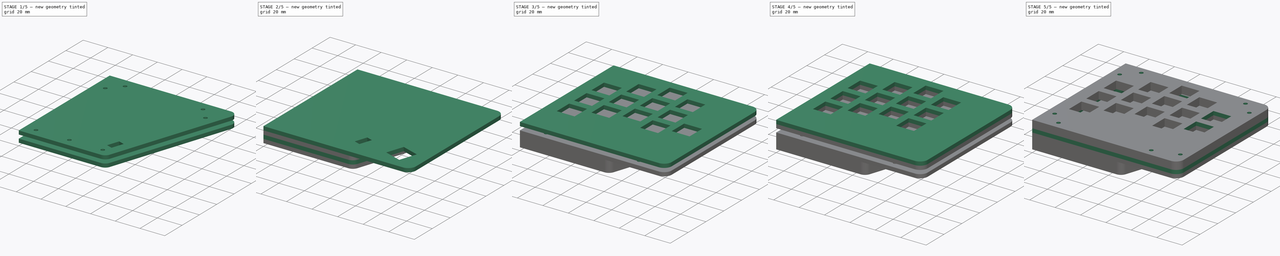
[diagram: build sequence overview — one tinted view per stage of 5, left to right]
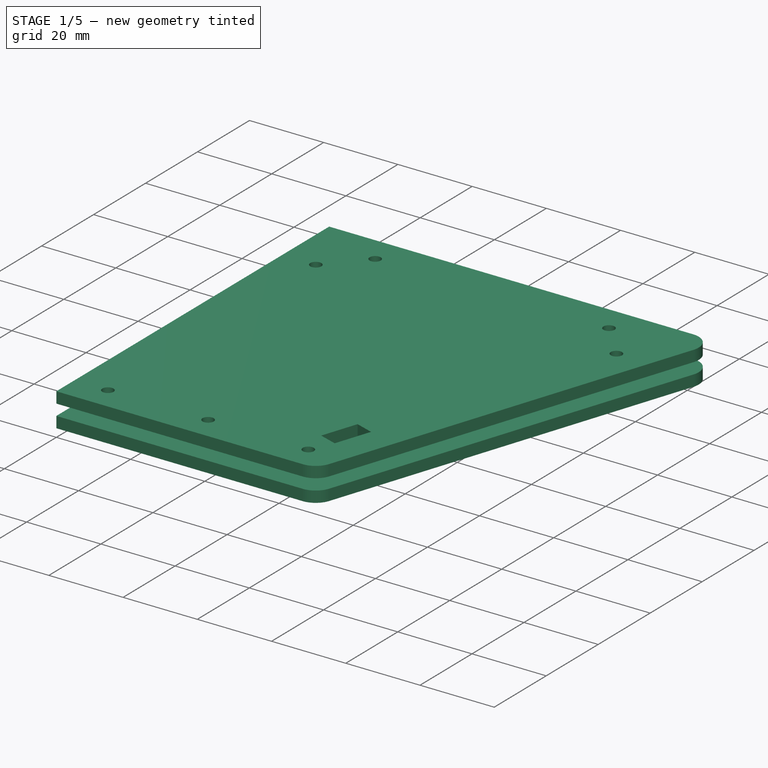
[diagram: stage 1 of 5 — iso view after this stage's code; geometry added in this stage tinted green]
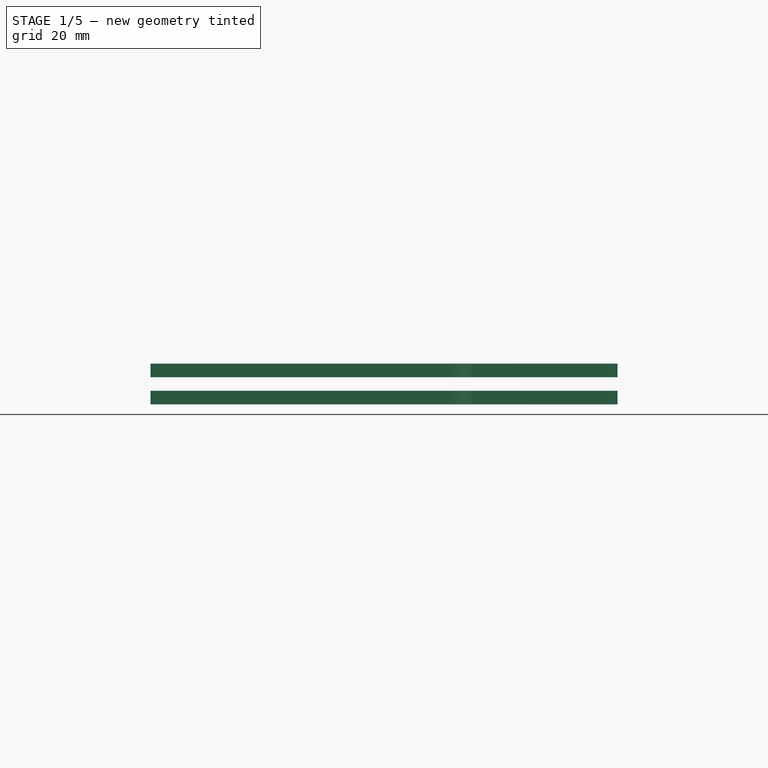
[diagram: stage 1 of 5 — front view after this stage's code; geometry added in this stage tinted green]
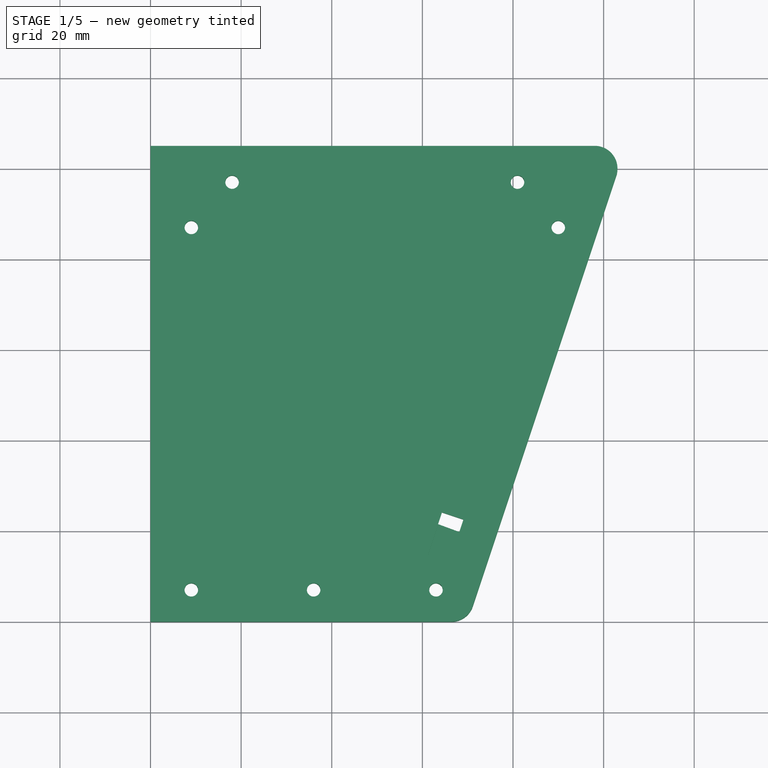
[diagram: stage 1 of 5 — top view after this stage's code; geometry added in this stage tinted green]
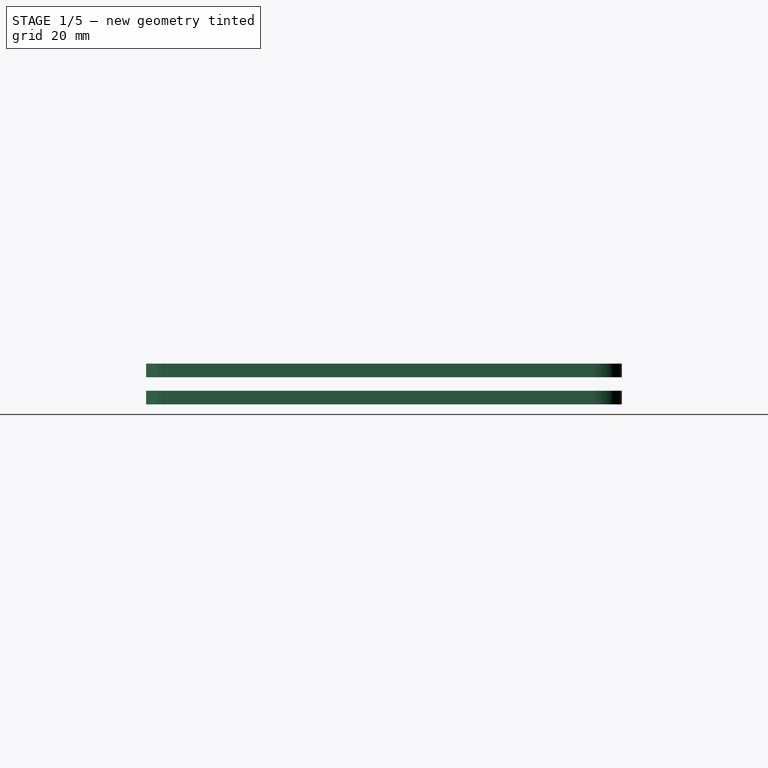
[diagram: stage 1 of 5 — right view after this stage's code; geometry added in this stage tinted green]
FCSTD DOCUMENT  (FreeCAD 0.16RUnknown)
Label: pictum_v1
License: All rights reserved
LicenseURL: http://en.wikipedia.org/wiki/All_rights_reserved
objects: Sketcher::SketchObject×26, PartDesign::Pocket×18, Drawing::FeatureViewPart×8, PartDesign::Pad×7, App::DocumentObjectGroup×7, PartDesign::LinearPattern×4, Drawing::FeaturePage×4
note: 80 computed .brp shape members not serialized (recipe doc carries the construction recipe); baked Part::Feature solids carry a one-line shape summary decoded from their .brp

FEATURE [Sketcher::SketchObject] Sketch003
  Placement = pos=(0,0,-9) rot=(0,0,1;0rad)
  sketch-geometry (9):
    g0: LineSegment StartX=0 StartY=0 StartZ=0 EndX=0 EndY=105 EndZ=0
    g1: LineSegment StartX=0 StartY=105 StartZ=0 EndX=98.0629 EndY=105 EndZ=0
    g2: LineSegment StartX=102.806 StartY=98.4189 StartZ=0 EndX=71.1396 EndY=3.41886 EndZ=0
    g3: LineSegment StartX=66.3962 StartY=0 StartZ=0 EndX=0 EndY=0 EndZ=0
    g4: ArcOfCircle CenterX=98.0629 CenterY=100 CenterZ=0 NormalX=0 NormalY=0 NormalZ=1 Radius=5 StartAngle=5.96143 EndAngle=7.85398
    g5: ArcOfCircle CenterX=66.3962 CenterY=5 CenterZ=0 NormalX=0 NormalY=0 NormalZ=1 Radius=5 StartAngle=4.71239 EndAngle=5.96143
    g6: LineSegment [constr] StartX=0 StartY=105 StartZ=0 EndX=105 EndY=105 EndZ=0
    g7: LineSegment [constr] StartX=105 StartY=105 StartZ=0 EndX=70 EndY=0 EndZ=0
    g8: LineSegment [constr] StartX=70 StartY=0 StartZ=0 EndX=0 EndY=0 EndZ=0
  constraints (23):
    c: Coincident(g-1,g0)
    c: PointOnObject(g0,g-2)
    c: Coincident(g0,g1)
    c: Horizontal(g1)
    c: Coincident(g3,g0)
    c: DistanceY(g-1,g0) = 105
    c: Tangent(g1,g4) = 1.5708
    c: Tangent(g2,g4) = 1.5708
    c: Tangent(g2,g5) = 1.5708
    c: Tangent(g3,g5) = 1.5708
    c: Coincident(g0,g6)
    c: Horizontal(g6)
    c: Coincident(g6,g7)
    c: PointOnObject(g7,g-1)
    c: Coincident(g7,g8)
    c: Coincident(g8,g-1)
    c: Tangent(g8,g5)
    c: DistanceX(g0,g6) = 105
    c: DistanceX(g-1,g7) = 70
    c: PointOnObject(g2,g7)
    c: PointOnObject(g2,g7)
    c: Radius(g5) = 5
    c: Radius(g4) = 5
FEATURE [PartDesign::Pad] Pad001
  Length = 3
  Length2 = 100
  Placement = pos=(0,0,-9) rot=(0,0,1;0rad)
  Sketch = -> Sketch003
  Type = 0
FEATURE [Sketcher::SketchObject] Sketch004
  Placement = pos=(0,0,-6) rot=(0,0,1;0rad)
  Support = -> Pad001 [Face8]
  sketch-geometry (16):
    g0: LineSegment StartX=36.0002 StartY=40 StartZ=0 EndX=50.0002 EndY=40 EndZ=0
    g1: LineSegment StartX=50.0002 StartY=40 StartZ=0 EndX=50.0002 EndY=26 EndZ=0
    g2: LineSegment StartX=50.0002 StartY=26 StartZ=0 EndX=36.0002 EndY=26 EndZ=0
    g3: LineSegment StartX=36.0002 StartY=26 StartZ=0 EndX=36.0002 EndY=40 EndZ=0
    g4: LineSegment [constr] StartX=43.0002 StartY=26 StartZ=0 EndX=43 EndY=-9.64e-10 EndZ=0
    g5: LineSegment StartX=73.3009 StartY=32.8897 StartZ=0 EndX=68.4539 EndY=19.7555 EndZ=0
    g6: LineSegment StartX=55.3197 StartY=24.6025 StartZ=0 EndX=60.1667 EndY=37.7367 EndZ=0
    g7: LineSegment StartX=60.1667 StartY=37.7367 StartZ=0 EndX=73.3009 EndY=32.8897 EndZ=0
    g8: LineSegment StartX=68.4539 StartY=19.7555 StartZ=0 EndX=55.3197 EndY=24.6025 EndZ=0
    g9: Circle [constr] CenterX=43 CenterY=-29 CenterZ=0 NormalX=0 NormalY=0 NormalZ=1 Radius=55
    g10: LineSegment StartX=25.8338 StartY=37.7368 StartZ=0 EndX=30.6807 EndY=24.6026 EndZ=0
    g11: LineSegment StartX=17.5465 StartY=19.7557 StartZ=0 EndX=12.6996 EndY=32.8899 EndZ=0
    g12: LineSegment StartX=12.6996 StartY=32.8899 StartZ=0 EndX=25.8338 EndY=37.7368 EndZ=0
    g13: LineSegment StartX=30.6807 StartY=24.6026 StartZ=0 EndX=17.5465 EndY=19.7557 EndZ=0
    g14: LineSegment [constr] StartX=43.0002 StartY=26 StartZ=0 EndX=43.0002 EndY=26 EndZ=0
    g15: LineSegment [constr] StartX=43 StartY=-29 StartZ=0 EndX=43 EndY=-9.64e-10 EndZ=0
  constraints (47):
    c: Coincident(g0,g1)
    c: Coincident(g1,g2)
    c: Coincident(g2,g3)
    c: Coincident(g3,g0)
    c: Horizontal(g0)
    c: Horizontal(g2)
    c: Vertical(g1)
    c: Vertical(g3)
    c: DistanceY(g1,g0) = 14
    c: DistanceX(g2,g1) = 14
    c: Coincident(g7,g5)
    c: Coincident(g5,g8)
    c: Coincident(g8,g6)
    c: Symmetric(g1,g2,g4)
    c: Perpendicular(g7,g6)
    c: Perpendicular(g8,g5)
    c: Distance(g6,g5) = 14
    c: Coincident(g6,g7)
    c: Perpendicular(g7,g5)
    c: Distance(g5,g5) = 14
    c: Coincident(g12,g10)
    c: Coincident(g13,g11)
    c: Perpendicular(g12,g11)
    c: Perpendicular(g13,g10)
    c: Distance(g11,g10) = 14
    c: Coincident(g11,g12)
    c: Perpendicular(g12,g10)
    c: Equal(g5,g10) = 14
    c: PointOnObject(g10,g9)
    c: Distance(g10,g2) = 5.5
    c: PointOnObject(g6,g9)
    c: Distance(g6,g1) = 5.5
    c: PointOnObject(g5,g9)
    c: PointOnObject(g11,g9)
    c: Coincident(g10,g13)
    c: Coincident(g14,g4)
    c: PointOnObject(g14,g2)
    c: Vertical(g14)
    c: PointOnObject(g4,g9)
    c: PointOnObject(g14,g9)
    c: PointOnObject(g4,g-1)
    c: DistanceY(g4,g4) = 26
    c: DistanceY(g9,g4) = 29
    c: Coincident(g15,g9)
    c: Coincident(g15,g4)
    c: Vertical(g15)
    c: DistanceX(g-1,g4) = 43
FEATURE [PartDesign::Pocket] Pocket002
  Length = 5
  Placement = pos=(0,0,-9) rot=(0,0,1;0rad)
  Sketch = -> Sketch004
  Type = 2
FEATURE [Sketcher::SketchObject] Sketch020
  Placement = pos=(0,0,-3) rot=(0,0,1;0rad)
  sketch-geometry (9):
    g0: LineSegment StartX=0 StartY=0 StartZ=0 EndX=0 EndY=105 EndZ=0
    g1: LineSegment StartX=0 StartY=105 StartZ=0 EndX=98.0629 EndY=105 EndZ=0
    g2: LineSegment StartX=102.806 StartY=98.4189 StartZ=0 EndX=71.1396 EndY=3.41886 EndZ=0
    g3: LineSegment StartX=66.3962 StartY=0 StartZ=0 EndX=0 EndY=0 EndZ=0
    g4: ArcOfCircle CenterX=98.0629 CenterY=100 CenterZ=0 NormalX=0 NormalY=0 NormalZ=1 Radius=5 StartAngle=5.96143 EndAngle=7.85398
    g5: ArcOfCircle CenterX=66.3962 CenterY=5 CenterZ=0 NormalX=0 NormalY=0 NormalZ=1 Radius=5 StartAngle=4.71239 EndAngle=5.96143
    g6: LineSegment [constr] StartX=0 StartY=105 StartZ=0 EndX=105 EndY=105 EndZ=0
    g7: LineSegment [constr] StartX=105 StartY=105 StartZ=0 EndX=70 EndY=0 EndZ=0
    g8: LineSegment [constr] StartX=70 StartY=0 StartZ=0 EndX=0 EndY=0 EndZ=0
  constraints (23):
    c: Coincident(g-1,g0)
    c: PointOnObject(g0,g-2)
    c: Coincident(g0,g1)
    c: Horizontal(g1)
    c: Coincident(g3,g0)
    c: DistanceY(g-1,g0) = 105
    c: Tangent(g1,g4) = 1.5708
    c: Tangent(g2,g4) = 1.5708
    c: Tangent(g2,g5) = 1.5708
    c: Tangent(g3,g5) = 1.5708
    c: Coincident(g0,g6)
    c: Horizontal(g6)
    c: Coincident(g6,g7)
    c: PointOnObject(g7,g-1)
    c: Coincident(g7,g8)
    c: Coincident(g8,g-1)
    c: Tangent(g8,g5)
    c: DistanceX(g0,g6) = 105
    c: DistanceX(g-1,g7) = 70
    c: PointOnObject(g2,g7)
    c: PointOnObject(g2,g7)
    c: Radius(g5) = 5
    c: Radius(g4) = 5
FEATURE [PartDesign::Pad] Pad008
  Length = 3
  Length2 = 100
  Placement = pos=(0,0,-3) rot=(0,0,1;0rad)
  Sketch = -> Sketch020
  Type = 0
FEATURE [Sketcher::SketchObject] Sketch022
  Support = -> Pad008 [Face8]
  sketch-geometry (12):
    g0: LineSegment [constr] StartX=0 StartY=105 StartZ=0 EndX=105 EndY=105 EndZ=0
    g1: LineSegment [constr] StartX=0 StartY=0 StartZ=0 EndX=70 EndY=0 EndZ=0
    g2: LineSegment [constr] StartX=70 StartY=0 StartZ=0 EndX=105 EndY=105 EndZ=0
    g3: LineSegment [constr] StartX=10 StartY=45 StartZ=0 EndX=76.5673 EndY=45 EndZ=0
    g4: LineSegment [constr] StartX=76.5673 StartY=45 StartZ=0 EndX=65.9006 EndY=13 EndZ=0
    g5: LineSegment [constr] StartX=65.9006 StartY=13 StartZ=0 EndX=10 EndY=13 EndZ=0
    g6: LineSegment [constr] StartX=10 StartY=13 StartZ=0 EndX=10 EndY=45 EndZ=0
    g7: LineSegment [constr] StartX=0 StartY=0 StartZ=0 EndX=0 EndY=105 EndZ=0
    g8: LineSegment StartX=65.9006 StartY=13 StartZ=0 EndX=61.1572 EndY=14.5811 EndZ=0
    g9: LineSegment StartX=61.1572 StartY=14.5811 StartZ=0 EndX=64.3195 EndY=24.068 EndZ=0
    g10: LineSegment StartX=64.3195 StartY=24.068 StartZ=0 EndX=69.0629 EndY=22.4868 EndZ=0
    g11: LineSegment StartX=65.9006 StartY=13 StartZ=0 EndX=69.0629 EndY=22.4868 EndZ=0
  constraints (35):
    c: DistanceY(g1,g0) = 105
    c: Horizontal(g0)
    c: DistanceX(g0,g0) = 105
    c: Horizontal(g1)
    c: DistanceX(g1,g1) = 70
    c: Coincident(g2,g1)
    c: Coincident(g2,g0)
    c: Coincident(g3,g4)
    c: Coincident(g4,g5)
    c: Coincident(g5,g6)
    c: Coincident(g6,g3)
    c: Horizontal(g3)
    c: Horizontal(g5)
    c: Vertical(g6)
    c: DistanceX(g1,g5) = 10
    c: DistanceY(g1,g5) = 13
    c: DistanceY(g3,g0) = 60
    c: PointOnObject(g1,g-1)
    c: Coincident(g7,g1)
    c: Coincident(g7,g0)
    c: Vertical(g7)
    c: Distance(g3,g2) = 8
    c: Distance(g4,g2) = 8
    c: Coincident(g8,g9)
    c: Coincident(g9,g10)
    c: Coincident(g8,g4)
    c: PointOnObject(g10,g4)
    c: Perpendicular(g9,g8)
    c: Perpendicular(g10,g9)
    c: Perpendicular(g4,g10)
    c: Distance(g4,g10) = 10
    c: Distance(g9,g10) = 5
    c: Coincident(g11,g4)
    c: Coincident(g11,g10)
    c: Coincident(g1,g-1)
FEATURE [PartDesign::Pocket] Pocket014
  Length = 5
  Placement = pos=(0,0,-3) rot=(0,0,1;0rad)
  Sketch = -> Sketch022
  Type = 2
FEATURE [App::DocumentObjectGroup] Grupp005  label="2_small"
  Group = -> [Pad007,Pocket013,Sketch028,Pocket020]
FEATURE [PartDesign::Pocket] Pocket021
  Length = 5
  Placement = pos=(0,0,-9) rot=(0,0,1;0rad)
  Sketch = -> Sketch030
  Type = 2
FEATURE [App::DocumentObjectGroup] Grupp004  label="1_small"
  Group = -> [Pad001,Pocket002,Pocket021]
FEATURE [PartDesign::Pocket] Pocket022
  Length = 5
  Placement = pos=(0,0,-3) rot=(0,0,1;0rad)
  Sketch = -> Sketch031
  Type = 2
FEATURE [App::DocumentObjectGroup] Grupp006  label="3_small"
  Group = -> [Pad008,Pocket014,Pocket022]
FEATURE [Drawing::FeatureViewPart] View
  Direction = (0,0,1)
  HiddenWidth = 0.15
  LineWidth = 0.35
  Rotation = 0
  ShowHiddenLines = false
  ShowSmoothLines = false
  Source = -> Pocket017
  Tolerance = 0.05
  ViewResult = <blob: 3198 chars omitted>
  Visible = true
  X = 5
  Y = 205
FEATURE [Drawing::FeatureViewPart] View001
  Direction = (0,0,1)
  HiddenWidth = 0.15
  LineWidth = 0.35
  Rotation = 0
  ShowHiddenLines = false
  ShowSmoothLines = false
  Source = -> Pocket018
  Tolerance = 0.05
  ViewResult = <blob: 3544 chars omitted>
  Visible = true
  X = 125
  Y = 205
FEATURE [Drawing::FeaturePage] Page  label="Page_big_1_2"
  Group = -> [View,View001]
FEATURE [Drawing::FeatureViewPart] View002
  Direction = (0,0,1)
  HiddenWidth = 0.15
  LineWidth = 0.35
  Rotation = 0
  ShowHiddenLines = false
  ShowSmoothLines = false
  Source = -> Pocket016
  Tolerance = 0.05
  ViewResult = <g id="View002"\n   transform="rotate(0,5,205) translate(5,205) scale(1,1)"\n  >\n<g   stroke="rgb(0, 0, 0)"\n   stroke-width="0.35"\n   stroke-linecap="butt"\n   stroke-linejoin="miter"\n   fill="none"\n   transform="scale(1,-1)"\n  >\n<path id= "1" d=" M 109 1.81188e-013 L 2.27374e-013 1.81188e-013 " />\n<path d="M109 1.81188e-013 A6 6 0 0 1 115 6" /><path id= "3" d=" M 0 1.81188e-013 L 0 105 " />\n<path id= "4" d=" M 115 99 L 115 6 " />\n<path id= "5" d=" M 0 105 L 23 105 " />\n<path d="M115 99 A6 6 0 0 1 109 105" /><path id= "7" d=" M 23 92 L 23 105 " />\n<path id= "8" d=" M 38 105 L 109 105 " />\n<path id= "9" d=" M 13 92 L 23 92 " />\n<path id= "10" d=" M 38 105 L 38 97 " />\n<path id= "11" d=" M 13 82 L 13 92 " />\n<path id= "12" d=" M 38 97 L 90 97 " />\n<path id= "13" d=" M 8 82 L 13 82 " />\n<path id= "14" d=" M 90 97 L 90 92 " />\n<path id= "15" d=" M 8 23 L 8 82 " />\n<path id= "16" d=" M 90 92 L 100 92 " />\n<path id= "17" d=" M 13 23 L 8 23 " />\n<path id= "18" d=" M 100 92 L 100 82 " />\n<path id= "19" d=" M 13 13 L 13 23 " />\n<path id= "20" d=" M 100 82 L 105 82 " />\n<path id= "21" d=" M 23 13 L 13 13 " />\n<path id= "22" d=" M 105 31.2816 L 105 82 " />\n<path id= "23" d=" M 23 8 L 23 13 " />\n<path id= "24" d=" M 87.7785 31.2816 L 105 31.2816 " />\n<path id= "25" d=" M 80.018 8 L 23 8 " />\n<path id= "26" d=" M 80.018 8 L 87.7785 31.2816 " />\n<circle cx ="89.5" cy ="6" r ="1.5" /><path id= "28" d=" M 87.2912 12.4272 L 91.7184 25.7088 " />\n<path id= "29" d=" M 100.573 8 L 87.2912 12.4272 " />\n<path id= "30" d=" M 91.7184 25.7088 L 105 21.2816 " />\n<path id= "31" d=" M 105 21.2816 L 100.573 8 " />\n<circle cx ="108.5" cy ="11.5" r ="1.5" /><circle cx ="6.5" cy ="16" r ="1.5" /><circle cx ="16.5" cy ="6" r ="1.5" /><circle cx ="98.5" cy ="99" r ="1.5" /><circle cx ="16.5" cy ="99" r ="1.5" /><circle cx ="108.5" cy ="89" r ="1.5" /><circle cx ="6.5" cy ="89" r ="1.5" /></g>\n</g>
  Visible = true
  X = 5
  Y = 205
FEATURE [Drawing::FeatureViewPart] View003
  Direction = (0,0,1)
  HiddenWidth = 0.15
  LineWidth = 0.35
  Rotation = 0
  ShowHiddenLines = false
  ShowSmoothLines = false
  Source = -> Pocket019
  Tolerance = 0.05
  ViewResult = <g id="View003"\n   transform="rotate(0,125,205) translate(125,205) scale(1,1)"\n  >\n<g   stroke="rgb(0, 0, 0)"\n   stroke-width="0.35"\n   stroke-linecap="butt"\n   stroke-linejoin="miter"\n   fill="none"\n   transform="scale(1,-1)"\n  >\n<path id= "1" d=" M 109 0 L 0 0 " />\n<path d="M109 0 A6 6 0 0 1 115 6" /><path id= "3" d=" M 0 0 L 0 105 " />\n<path id= "4" d=" M 115 99 L 115 6 " />\n<path id= "5" d=" M 0 105 L 109 105 " />\n<path d="M115 99 A6 6 0 0 1 109 105" /><path id= "7" d=" M 105 21.2816 L 100.573 8 " />\n<path id= "8" d=" M 91.7184 25.7088 L 105 21.2816 " />\n<path id= "9" d=" M 100.573 8 L 87.2912 12.4272 " />\n<path id= "10" d=" M 87.2912 12.4272 L 91.7184 25.7088 " />\n<path id= "11" d=" M 65.9006 13 L 61.1572 14.5811 " />\n<path id= "12" d=" M 65.9006 13 L 69.0629 22.4868 " />\n<path id= "13" d=" M 61.1572 14.5811 L 64.3195 24.068 " />\n<path id= "14" d=" M 64.3195 24.068 L 69.0629 22.4868 " />\n<circle cx ="6.5" cy ="89" r ="1.5" /><circle cx ="6.5" cy ="16" r ="1.5" /><circle cx ="16.5" cy ="99" r ="1.5" /><circle cx ="98.5" cy ="99" r ="1.5" /><circle cx ="108.5" cy ="11.5" r ="1.5" /><circle cx ="108.5" cy ="89" r ="1.5" /><circle cx ="89.5" cy ="6" r ="1.5" /><circle cx ="16.5" cy ="6" r ="1.5" /></g>\n</g>
  Visible = true
  X = 125
  Y = 205
FEATURE [Drawing::FeaturePage] Page001  label="Page_big_3_4"
  Group = -> [View002,View003]
FEATURE [Drawing::FeatureViewPart] View004
  Direction = (0,0,1)
  HiddenWidth = 0.15
  LineWidth = 0.35
  Rotation = 0
  ShowHiddenLines = false
  ShowSmoothLines = false
  Source = -> Pocket021
  Tolerance = 0.05
  ViewResult = <g id="View004"\n   transform="rotate(0,5,205) translate(5,205) scale(1,1)"\n  >\n<g   stroke="rgb(0, 0, 0)"\n   stroke-width="0.35"\n   stroke-linecap="butt"\n   stroke-linejoin="miter"\n   fill="none"\n   transform="scale(1,-1)"\n  >\n<path id= "1" d=" M 66.3962 0 L -2.84217e-014 0 " />\n<path d="M66.3962 0 A5 5 0 0 1 71.1396 3.41886" /><path id= "3" d=" M 0 0 L 0 105 " />\n<path id= "4" d=" M 102.806 98.4189 L 71.1396 3.41886 " />\n<path id= "5" d=" M 0 105 L 98.0629 105 " />\n<path d="M102.806 98.4189 A5 5 0 0 1 98.0629 105" /><path id= "7" d=" M 50.0002 40 L 50.0002 26 " />\n<path id= "8" d=" M 36.0002 40 L 50.0002 40 " />\n<path id= "9" d=" M 50.0002 26 L 36.0002 26 " />\n<path id= "10" d=" M 36.0002 26 L 36.0002 40 " />\n<path id= "11" d=" M 55.3197 24.6025 L 60.1667 37.7367 " />\n<path id= "12" d=" M 68.4539 19.7555 L 55.3197 24.6025 " />\n<path id= "13" d=" M 60.1667 37.7367 L 73.3009 32.8897 " />\n<path id= "14" d=" M 73.3009 32.8897 L 68.4539 19.7555 " />\n<circle cx ="81" cy ="97" r ="1.5" /><circle cx ="63" cy ="7" r ="1.5" /><circle cx ="36" cy ="7" r ="1.5" /><circle cx ="9" cy ="87" r ="1.5" /><circle cx ="9" cy ="7" r ="1.5" /><path id= "20" d=" M 30.6807 24.6026 L 17.5465 19.7557 " />\n<path id= "21" d=" M 25.8338 37.7368 L 30.6807 24.6026 " />\n<path id= "22" d=" M 17.5465 19.7557 L 12.6996 32.8899 " />\n<path id= "23" d=" M 12.6996 32.8899 L 25.8338 37.7368 " />\n<circle cx ="18" cy ="97" r ="1.5" /><circle cx ="90" cy ="87" r ="1.5" /></g>\n</g>
  Visible = true
  X = 5
  Y = 205
FEATURE [Drawing::FeatureViewPart] View007
  Direction = (0,0,1)
  HiddenWidth = 0.15
  LineWidth = 0.35
  Rotation = 180
  ShowHiddenLines = false
  ShowSmoothLines = false
  Source = -> Pocket022
  Tolerance = 0.05
  ViewResult = <g id="View007"\n   transform="rotate(180,185,100) translate(185,100) scale(1,1)"\n  >\n<g   stroke="rgb(0, 0, 0)"\n   stroke-width="0.35"\n   stroke-linecap="butt"\n   stroke-linejoin="miter"\n   fill="none"\n   transform="scale(1,-1)"\n  >\n<path id= "1" d=" M 66.3962 0 L 0 0 " />\n<path d="M66.3962 0 A5 5 0 0 1 71.1396 3.41886" /><path id= "3" d=" M 0 0 L 0 105 " />\n<path id= "4" d=" M 102.806 98.4189 L 71.1396 3.41886 " />\n<path id= "5" d=" M 0 105 L 98.0629 105 " />\n<path d="M102.806 98.4189 A5 5 0 0 1 98.0629 105" /><path id= "7" d=" M 65.9006 13 L 69.0629 22.4868 " />\n<path id= "8" d=" M 65.9006 13 L 61.1572 14.5811 " />\n<path id= "9" d=" M 64.3195 24.068 L 69.0629 22.4868 " />\n<path id= "10" d=" M 61.1572 14.5811 L 64.3195 24.068 " />\n<circle cx ="90" cy ="87" r ="1.5" /><circle cx ="9" cy ="87" r ="1.5" /><circle cx ="81" cy ="97" r ="1.5" /><circle cx ="18" cy ="97" r ="1.5" /><circle cx ="9" cy ="7" r ="1.5" /><circle cx ="36" cy ="7" r ="1.5" /><circle cx ="63" cy ="7" r ="1.5" /></g>\n</g>
  Visible = true
  X = 185
  Y = 100
FEATURE [Drawing::FeatureViewPart] View008
  Direction = (0,0,1)
  HiddenWidth = 0.15
  LineWidth = 0.35
  Rotation = 180
  ShowHiddenLines = false
  ShowSmoothLines = false
  Source = -> Pocket021
  Tolerance = 0.05
  ViewResult = <g id="View008"\n   transform="rotate(180,185,100) translate(185,100) scale(1,1)"\n  >\n<g   stroke="rgb(0, 0, 0)"\n   stroke-width="0.35"\n   stroke-linecap="butt"\n   stroke-linejoin="miter"\n   fill="none"\n   transform="scale(1,-1)"\n  >\n<path id= "1" d=" M 66.3962 0 L -2.84217e-014 0 " />\n<path d="M66.3962 0 A5 5 0 0 1 71.1396 3.41886" /><path id= "3" d=" M 0 0 L 0 105 " />\n<path id= "4" d=" M 102.806 98.4189 L 71.1396 3.41886 " />\n<path id= "5" d=" M 0 105 L 98.0629 105 " />\n<path d="M102.806 98.4189 A5 5 0 0 1 98.0629 105" /><path id= "7" d=" M 50.0002 40 L 50.0002 26 " />\n<path id= "8" d=" M 36.0002 40 L 50.0002 40 " />\n<path id= "9" d=" M 50.0002 26 L 36.0002 26 " />\n<path id= "10" d=" M 36.0002 26 L 36.0002 40 " />\n<path id= "11" d=" M 55.3197 24.6025 L 60.1667 37.7367 " />\n<path id= "12" d=" M 68.4539 19.7555 L 55.3197 24.6025 " />\n<path id= "13" d=" M 60.1667 37.7367 L 73.3009 32.8897 " />\n<path id= "14" d=" M 73.3009 32.8897 L 68.4539 19.7555 " />\n<circle cx ="81" cy ="97" r ="1.5" /><circle cx ="63" cy ="7" r ="1.5" /><circle cx ="36" cy ="7" r ="1.5" /><circle cx ="9" cy ="87" r ="1.5" /><circle cx ="9" cy ="7" r ="1.5" /><path id= "20" d=" M 30.6807 24.6026 L 17.5465 19.7557 " />\n<path id= "21" d=" M 25.8338 37.7368 L 30.6807 24.6026 " />\n<path id= "22" d=" M 17.5465 19.7557 L 12.6996 32.8899 " />\n<path id= "23" d=" M 12.6996 32.8899 L 25.8338 37.7368 " />\n<circle cx ="18" cy ="97" r ="1.5" /><circle cx ="90" cy ="87" r ="1.5" /></g>\n</g>
  Visible = true
  X = 185
  Y = 100
FEATURE [Drawing::FeaturePage] Page002  label="Page_small_1_1"
  Group = -> [View004,View008]
FEATURE [Drawing::FeatureViewPart] View009
  Direction = (0,0,1)
  HiddenWidth = 0.15
  LineWidth = 0.35
  Rotation = 0
  ShowHiddenLines = false
  ShowSmoothLines = false
  Source = -> Pocket020
  Tolerance = 0.05
  ViewResult = <g id="View009"\n   transform="rotate(0,5,205) translate(5,205) scale(1,1)"\n  >\n<g   stroke="rgb(0, 0, 0)"\n   stroke-width="0.35"\n   stroke-linecap="butt"\n   stroke-linejoin="miter"\n   fill="none"\n   transform="scale(1,-1)"\n  >\n<path id= "1" d=" M 66.3962 0 L 4.26326e-014 0 " />\n<path d="M66.3962 0 A5 5 0 0 1 71.1396 3.41886" /><path id= "3" d=" M 0 0 L 0 105 " />\n<path id= "4" d=" M 102.806 98.4189 L 71.1396 3.41886 " />\n<path id= "5" d=" M 0 105 L 98.0629 105 " />\n<path d="M102.806 98.4189 A5 5 0 0 1 98.0629 105" /><circle cx ="18" cy ="97" r ="1.5" /><circle cx ="90" cy ="87" r ="1.5" /><circle cx ="81" cy ="97" r ="1.5" /><circle cx ="36" cy ="7" r ="1.5" /><circle cx ="63" cy ="7" r ="1.5" /><path id= "12" d=" M 73.9117 33.871 L 66.9547 13 " />\n<path id= "13" d=" M 73.9117 33.871 L 52 43 " />\n<path id= "14" d=" M 66.9547 13 L 12 13 " />\n<path id= "15" d=" M 52 43 L 12 43 " />\n<path id= "16" d=" M 12 13 L 12 43 " />\n<circle cx ="9" cy ="7" r ="1.5" /><circle cx ="9" cy ="87" r ="1.5" /></g>\n</g>
  Visible = true
  X = 5
  Y = 205
FEATURE [Drawing::FeaturePage] Page003  label="Page_small_2_3"
  Group = -> [View007,View009]
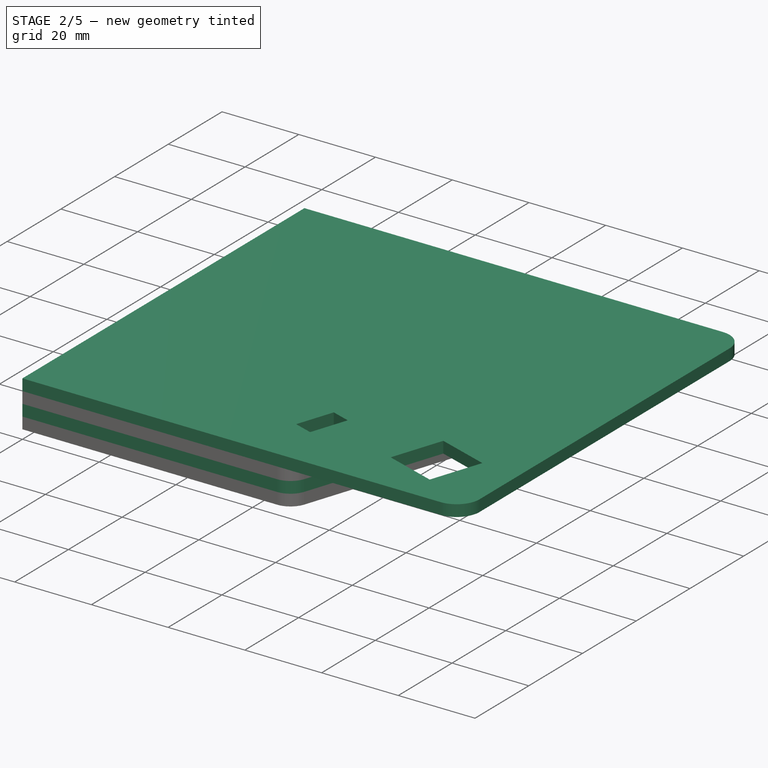
[diagram: stage 2 of 5 — iso view after this stage's code; geometry added in this stage tinted green]
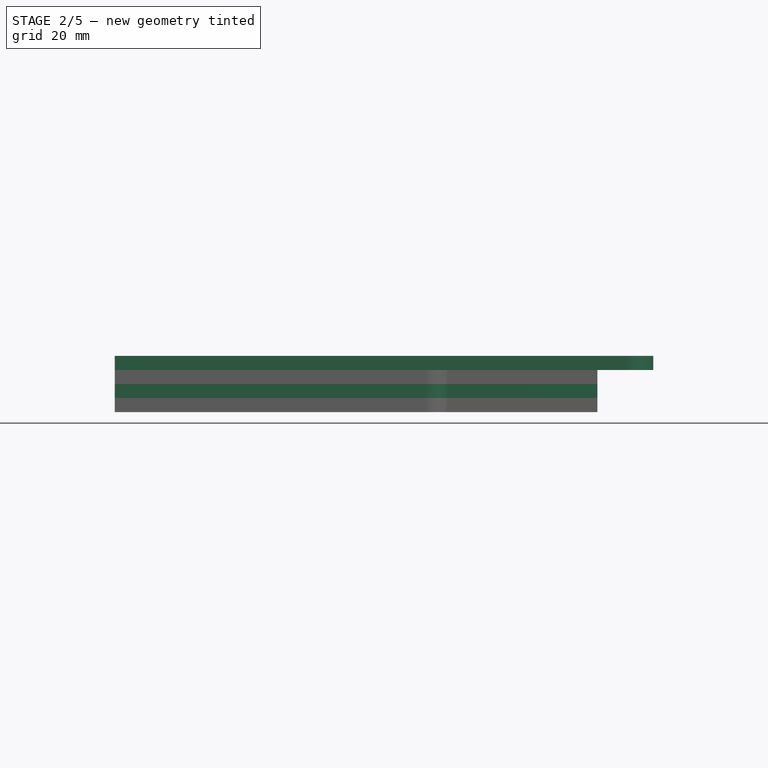
[diagram: stage 2 of 5 — front view after this stage's code; geometry added in this stage tinted green]
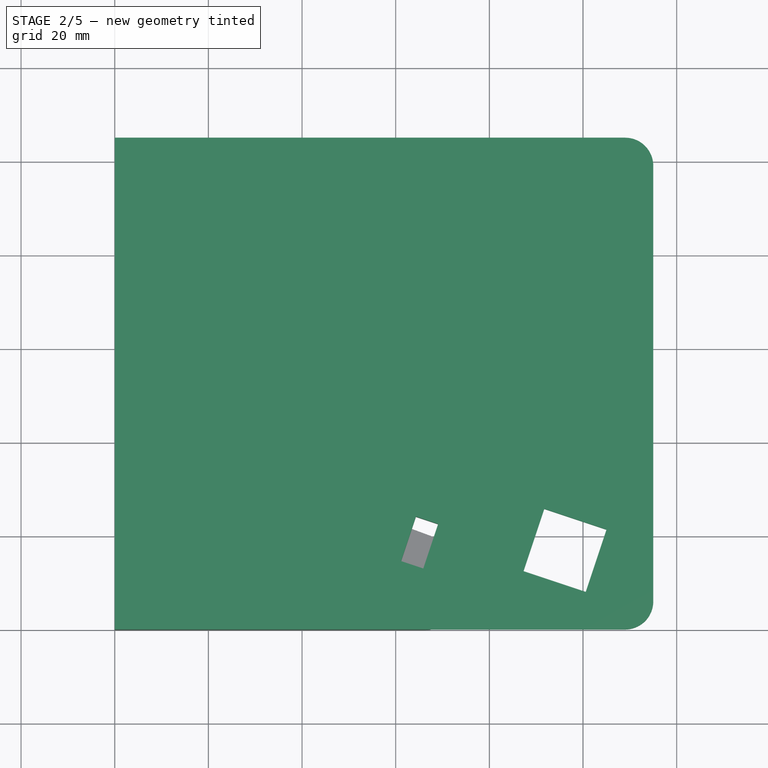
[diagram: stage 2 of 5 — top view after this stage's code; geometry added in this stage tinted green]
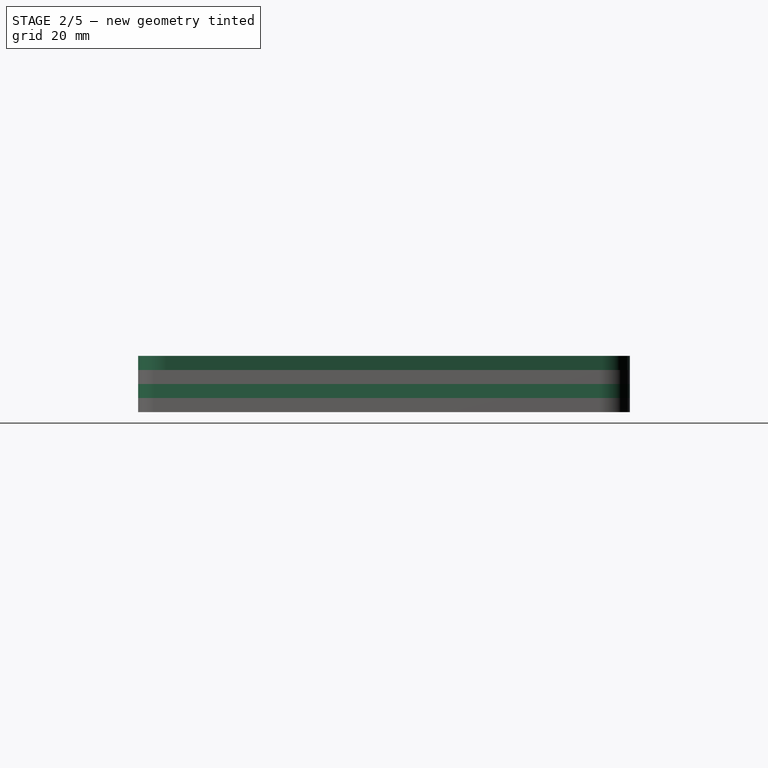
[diagram: stage 2 of 5 — right view after this stage's code; geometry added in this stage tinted green]
FEATURE [Sketcher::SketchObject] Sketch005
  Placement = pos=(0,0,3) rot=(0,0,1;0rad)
  sketch-geometry (10):
    g0: LineSegment [constr] StartX=0 StartY=105 StartZ=0 EndX=115 EndY=105 EndZ=0
    g1: LineSegment [constr] StartX=115 StartY=105 StartZ=0 EndX=115 EndY=0 EndZ=0
    g2: LineSegment [constr] StartX=115 StartY=0 StartZ=0 EndX=0 EndY=0 EndZ=0
    g3: LineSegment [constr] StartX=0 StartY=0 StartZ=0 EndX=0 EndY=105 EndZ=0
    g4: LineSegment StartX=0 StartY=105 StartZ=0 EndX=109 EndY=105 EndZ=0
    g5: LineSegment StartX=115 StartY=99 StartZ=0 EndX=115 EndY=6 EndZ=0
    g6: LineSegment StartX=109 StartY=0 StartZ=0 EndX=0 EndY=0 EndZ=0
    g7: LineSegment StartX=0 StartY=0 StartZ=0 EndX=0 EndY=105 EndZ=0
    g8: ArcOfCircle CenterX=109 CenterY=99 CenterZ=0 NormalX=0 NormalY=0 NormalZ=1 Radius=6 StartAngle=0 EndAngle=1.5708
    g9: ArcOfCircle CenterX=109 CenterY=6 CenterZ=0 NormalX=0 NormalY=0 NormalZ=1 Radius=6 StartAngle=4.71239 EndAngle=6.28319
  constraints (27):
    c: Coincident(g0,g1)
    c: Coincident(g1,g2)
    c: Coincident(g2,g3)
    c: Coincident(g3,g0)
    c: Horizontal(g0)
    c: Horizontal(g2)
    c: Vertical(g1)
    c: Vertical(g3)
    c: PointOnObject(g1,g-1)
    c: DistanceY(g2,g0) = 105
    c: DistanceX(g0,g0) = 115
    c: Coincident(g6,g7)
    c: Coincident(g7,g4)
    c: Horizontal(g4)
    c: Horizontal(g6)
    c: Vertical(g5)
    c: Vertical(g7)
    c: Coincident(g4,g0)
    c: Coincident(g6,g2)
    c: Tangent(g4,g8) = 1.5708
    c: Tangent(g5,g8) = 1.5708
    c: Tangent(g5,g9) = 1.5708
    c: Tangent(g6,g9) = 1.5708
    c: PointOnObject(g5,g1)
    c: DistanceX(g4,g0) = 6
    c: DistanceX(g6,g1) = 6
    c: Coincident(g2,g-1)
FEATURE [Sketcher::SketchObject] Sketch006
  sketch-geometry (10):
    g0: LineSegment [constr] StartX=0 StartY=105 StartZ=0 EndX=115 EndY=105 EndZ=0
    g1: LineSegment [constr] StartX=115 StartY=105 StartZ=0 EndX=115 EndY=0 EndZ=0
    g2: LineSegment [constr] StartX=115 StartY=0 StartZ=0 EndX=0 EndY=0 EndZ=0
    g3: LineSegment [constr] StartX=0 StartY=0 StartZ=0 EndX=0 EndY=105 EndZ=0
    g4: LineSegment StartX=0 StartY=105 StartZ=0 EndX=109 EndY=105 EndZ=0
    g5: LineSegment StartX=115 StartY=99 StartZ=0 EndX=115 EndY=6 EndZ=0
    g6: LineSegment StartX=109 StartY=0 StartZ=0 EndX=0 EndY=0 EndZ=0
    g7: LineSegment StartX=0 StartY=0 StartZ=0 EndX=0 EndY=105 EndZ=0
    g8: ArcOfCircle CenterX=109 CenterY=99 CenterZ=0 NormalX=0 NormalY=0 NormalZ=1 Radius=6 StartAngle=0 EndAngle=1.5708
    g9: ArcOfCircle CenterX=109 CenterY=6 CenterZ=0 NormalX=0 NormalY=0 NormalZ=1 Radius=6 StartAngle=4.71239 EndAngle=6.28319
  constraints (27):
    c: Coincident(g0,g1)
    c: Coincident(g1,g2)
    c: Coincident(g2,g3)
    c: Coincident(g3,g0)
    c: Horizontal(g0)
    c: Horizontal(g2)
    c: Vertical(g1)
    c: Vertical(g3)
    c: PointOnObject(g1,g-1)
    c: DistanceY(g2,g0) = 105
    c: DistanceX(g0,g0) = 115
    c: Coincident(g6,g7)
    c: Coincident(g7,g4)
    c: Horizontal(g4)
    c: Horizontal(g6)
    c: Vertical(g5)
    c: Vertical(g7)
    c: Coincident(g4,g0)
    c: Coincident(g6,g2)
    c: Tangent(g4,g8) = 1.5708
    c: Tangent(g5,g8) = 1.5708
    c: Tangent(g5,g9) = 1.5708
    c: Tangent(g6,g9) = 1.5708
    c: PointOnObject(g5,g1)
    c: DistanceX(g4,g0) = 6
    c: DistanceX(g6,g1) = 6
    c: Coincident(g2,g-1)
FEATURE [PartDesign::Pad] Pad003
  Length = 3
  Length2 = 100
  Sketch = -> Sketch006
  Type = 0
FEATURE [Sketcher::SketchObject] Sketch008
  Placement = pos=(0,0,3) rot=(0,0,1;0rad)
  Support = -> Pad003 [Face8]
  sketch-geometry (13):
    g0: LineSegment [constr] StartX=0 StartY=105 StartZ=0 EndX=105 EndY=105 EndZ=0
    g1: LineSegment [constr] StartX=105 StartY=105 StartZ=0 EndX=105 EndY=0 EndZ=0
    g2: LineSegment [constr] StartX=105 StartY=0 StartZ=0 EndX=0 EndY=0 EndZ=0
    g3: LineSegment [constr] StartX=0 StartY=0 StartZ=0 EndX=0 EndY=105 EndZ=0
    g4: LineSegment [constr] StartX=0 StartY=0 StartZ=0 EndX=70 EndY=0 EndZ=0
    g5: LineSegment [constr] StartX=70 StartY=0 StartZ=0 EndX=105 EndY=105 EndZ=0
    g6: LineSegment [constr] StartX=8 StartY=97 StartZ=0 EndX=105 EndY=97 EndZ=0
    g7: LineSegment [constr] StartX=105 StartY=8 StartZ=0 EndX=8 EndY=8 EndZ=0
    g8: LineSegment [constr] StartX=8 StartY=8 StartZ=0 EndX=8 EndY=97 EndZ=0
    g9: LineSegment StartX=87.2912 StartY=12.4272 StartZ=0 EndX=91.7184 EndY=25.7088 EndZ=0
    g10: LineSegment StartX=91.7184 StartY=25.7088 StartZ=0 EndX=105 EndY=21.2816 EndZ=0
    g11: LineSegment StartX=105 StartY=21.2816 StartZ=0 EndX=100.573 EndY=8 EndZ=0
    g12: LineSegment StartX=100.573 StartY=8 StartZ=0 EndX=87.2912 EndY=12.4272 EndZ=0
  constraints (39):
    c: Coincident(g0,g1)
    c: Coincident(g1,g2)
    c: Coincident(g2,g3)
    c: Coincident(g3,g0)
    c: Horizontal(g0)
    c: Horizontal(g2)
    c: Vertical(g1)
    c: Vertical(g3)
    c: PointOnObject(g1,g-1)
    c: DistanceY(g2,g0) = 105
    c: DistanceX(g0,g0) = 105
    c: Coincident(g4,g2)
    c: PointOnObject(g4,g2)
    c: DistanceX(g2,g4) = 70
    c: Coincident(g5,g4)
    c: Coincident(g5,g0)
    c: Coincident(g7,g8)
    c: Coincident(g8,g6)
    c: Horizontal(g6)
    c: Horizontal(g7)
    c: Vertical(g8)
    c: DistanceY(g6,g0) = 8
    c: DistanceX(g0,g6) = 8
    c: DistanceY(g2,g7) = 8
    c: PointOnObject(g7,g1)
    c: PointOnObject(g6,g1)
    c: Coincident(g9,g10)
    c: Coincident(g10,g11)
    c: Coincident(g11,g12)
    c: Coincident(g12,g9)
    c: Perpendicular(g10,g9)
    c: Perpendicular(g11,g10)
    c: Perpendicular(g12,g11)
    c: Distance(g10,g9) = 14
    c: Distance(g9,g9) = 14
    c: PointOnObject(g10,g1)
    c: PointOnObject(g11,g7)
    c: Parallel(g9,g5)
    c: Coincident(g2,g-1)
FEATURE [PartDesign::Pocket] Pocket004
  Length = 5
  Sketch = -> Sketch008
  Type = 2
FEATURE [Sketcher::SketchObject] Sketch015
  Placement = pos=(0,0,3) rot=(0,0,1;0rad)
  Support = -> Pocket004 [Face5]
  sketch-geometry (12):
    g0: LineSegment [constr] StartX=0 StartY=105 StartZ=0 EndX=105 EndY=105 EndZ=0
    g1: LineSegment [constr] StartX=0 StartY=0 StartZ=0 EndX=70 EndY=0 EndZ=0
    g2: LineSegment [constr] StartX=70 StartY=0 StartZ=0 EndX=105 EndY=105 EndZ=0
    g3: LineSegment [constr] StartX=10 StartY=45 StartZ=0 EndX=76.5673 EndY=45 EndZ=0
    g4: LineSegment [constr] StartX=76.5673 StartY=45 StartZ=0 EndX=65.9006 EndY=13 EndZ=0
    g5: LineSegment [constr] StartX=65.9006 StartY=13 StartZ=0 EndX=10 EndY=13 EndZ=0
    g6: LineSegment [constr] StartX=10 StartY=13 StartZ=0 EndX=10 EndY=45 EndZ=0
    g7: LineSegment [constr] StartX=0 StartY=0 StartZ=0 EndX=0 EndY=105 EndZ=0
    g8: LineSegment StartX=65.9006 StartY=13 StartZ=0 EndX=61.1572 EndY=14.5811 EndZ=0
    g9: LineSegment StartX=61.1572 StartY=14.5811 StartZ=0 EndX=64.3195 EndY=24.068 EndZ=0
    g10: LineSegment StartX=64.3195 StartY=24.068 StartZ=0 EndX=69.0629 EndY=22.4868 EndZ=0
    g11: LineSegment StartX=65.9006 StartY=13 StartZ=0 EndX=69.0629 EndY=22.4868 EndZ=0
  constraints (35):
    c: DistanceY(g1,g0) = 105
    c: Horizontal(g0)
    c: DistanceX(g0,g0) = 105
    c: Horizontal(g1)
    c: DistanceX(g1,g1) = 70
    c: Coincident(g2,g1)
    c: Coincident(g2,g0)
    c: Coincident(g3,g4)
    c: Coincident(g4,g5)
    c: Coincident(g5,g6)
    c: Coincident(g6,g3)
    c: Horizontal(g3)
    c: Horizontal(g5)
    c: Vertical(g6)
    c: DistanceX(g1,g5) = 10
    c: DistanceY(g1,g5) = 13
    c: DistanceY(g3,g0) = 60
    c: PointOnObject(g1,g-1)
    c: Coincident(g7,g1)
    c: Coincident(g7,g0)
    c: Vertical(g7)
    c: Distance(g3,g2) = 8
    c: Distance(g4,g2) = 8
    c: Coincident(g8,g9)
    c: Coincident(g9,g10)
    c: Coincident(g8,g4)
    c: PointOnObject(g10,g4)
    c: Perpendicular(g9,g8)
    c: Perpendicular(g10,g9)
    c: Perpendicular(g4,g10)
    c: Distance(g4,g10) = 10
    c: Distance(g9,g10) = 5
    c: Coincident(g11,g4)
    c: Coincident(g11,g10)
    c: Coincident(g1,g-1)
FEATURE [PartDesign::Pocket] Pocket008
  Length = 5
  Sketch = -> Sketch015
  Type = 2
FEATURE [Sketcher::SketchObject] Sketch019
  Placement = pos=(0,0,-6) rot=(0,0,1;0rad)
  sketch-geometry (9):
    g0: LineSegment StartX=0 StartY=0 StartZ=0 EndX=0 EndY=105 EndZ=0
    g1: LineSegment StartX=0 StartY=105 StartZ=0 EndX=98.0629 EndY=105 EndZ=0
    g2: LineSegment StartX=102.806 StartY=98.4189 StartZ=0 EndX=71.1396 EndY=3.41886 EndZ=0
    g3: LineSegment StartX=66.3962 StartY=0 StartZ=0 EndX=0 EndY=0 EndZ=0
    g4: ArcOfCircle CenterX=98.0629 CenterY=100 CenterZ=0 NormalX=0 NormalY=0 NormalZ=1 Radius=5 StartAngle=5.96143 EndAngle=7.85398
    g5: ArcOfCircle CenterX=66.3962 CenterY=5 CenterZ=0 NormalX=0 NormalY=0 NormalZ=1 Radius=5 StartAngle=4.71239 EndAngle=5.96143
    g6: LineSegment [constr] StartX=0 StartY=105 StartZ=0 EndX=105 EndY=105 EndZ=0
    g7: LineSegment [constr] StartX=105 StartY=105 StartZ=0 EndX=70 EndY=0 EndZ=0
    g8: LineSegment [constr] StartX=70 StartY=0 StartZ=0 EndX=0 EndY=0 EndZ=0
  constraints (23):
    c: Coincident(g-1,g0)
    c: PointOnObject(g0,g-2)
    c: Coincident(g0,g1)
    c: Horizontal(g1)
    c: Coincident(g3,g0)
    c: DistanceY(g-1,g0) = 105
    c: Tangent(g1,g4) = 1.5708
    c: Tangent(g2,g4) = 1.5708
    c: Tangent(g2,g5) = 1.5708
    c: Tangent(g3,g5) = 1.5708
    c: Coincident(g0,g6)
    c: Horizontal(g6)
    c: Coincident(g6,g7)
    c: PointOnObject(g7,g-1)
    c: Coincident(g7,g8)
    c: Coincident(g8,g-1)
    c: Tangent(g8,g5)
    c: DistanceX(g0,g6) = 105
    c: DistanceX(g-1,g7) = 70
    c: PointOnObject(g2,g7)
    c: PointOnObject(g2,g7)
    c: Radius(g5) = 5
    c: Radius(g4) = 5
FEATURE [PartDesign::Pad] Pad007
  Length = 3
  Length2 = 100
  Placement = pos=(0,0,-6) rot=(0,0,1;0rad)
  Sketch = -> Sketch019
  Type = 0
FEATURE [Sketcher::SketchObject] Sketch021
  ExternalGeometry = -> [Pad007]
  Placement = pos=(0,0,-3) rot=(0,0,1;0rad)
  Support = -> Pad007 [Face8]
  sketch-geometry (5):
    g0: LineSegment StartX=12 StartY=13 StartZ=0 EndX=12 EndY=43 EndZ=0
    g1: LineSegment StartX=73.9117 StartY=33.871 StartZ=0 EndX=66.9547 EndY=13 EndZ=0
    g2: LineSegment StartX=66.9547 StartY=13 StartZ=0 EndX=12 EndY=13 EndZ=0
    g3: LineSegment StartX=73.9117 StartY=33.871 StartZ=0 EndX=52 EndY=43 EndZ=0
    g4: LineSegment StartX=52 StartY=43 StartZ=0 EndX=12 EndY=43 EndZ=0
  constraints (15):
    c: Vertical(g0)
    c: Coincident(g1,g2)
    c: Coincident(g2,g0)
    c: Horizontal(g2)
    c: DistanceX(g-6,g0) = 12
    c: DistanceY(g0,g0) = 30
    c: DistanceY(g-1,g0) = 13
    c: Distance(g1,g-5) = 7
    c: Coincident(g1,g3)
    c: Coincident(g3,g4)
    c: Coincident(g4,g0)
    c: Distance(g1,g-5) = 7
    c: Horizontal(g4)
    c: DistanceX(g0,g3) = 40
    c: Distance(g1,g1) = 22
FEATURE [PartDesign::Pocket] Pocket013
  Length = 5
  Placement = pos=(0,0,-6) rot=(0,0,1;0rad)
  Sketch = -> Sketch021
  Type = 2
FEATURE [App::DocumentObjectGroup] Grupp003  label="4_big"
  Group = -> [Pad003,Pocket004,Pocket008,Pocket019]
FEATURE [Sketcher::SketchObject] Sketch028
  Placement = pos=(0,0,-3) rot=(0,0,1;0rad)
  Support = -> Pocket013 [Face5]
  sketch-geometry (11):
    g0: Circle CenterX=8.2237 CenterY=6.04182 CenterZ=0 NormalX=0 NormalY=0 NormalZ=1 Radius=1.5
    g1: Circle CenterX=62.4349 CenterY=6.21783 CenterZ=0 NormalX=0 NormalY=0 NormalZ=1 Radius=1.5
    g2: Circle CenterX=37.0894 CenterY=6.21783 CenterZ=0 NormalX=0 NormalY=0 NormalZ=1 Radius=1.5
    g3: Circle CenterX=13.189 CenterY=82.7356 CenterZ=0 NormalX=0 NormalY=0 NormalZ=1 Radius=1.5
    g4: Circle CenterX=78.8038 CenterY=99.8553 CenterZ=0 NormalX=0 NormalY=0 NormalZ=1 Radius=1.5
    g5: Circle CenterX=92.8847 CenterY=87.7106 CenterZ=0 NormalX=0 NormalY=0 NormalZ=1 Radius=1.5
    g6: Circle CenterX=24.4166 CenterY=99.1513 CenterZ=0 NormalX=0 NormalY=0 NormalZ=1 Radius=1.5
    g7: LineSegment [constr] StartX=7.04461 StartY=99.7836 StartZ=0 EndX=93.9937 EndY=99.7836 EndZ=0
    g8: LineSegment [constr] StartX=93.9937 StartY=99.7836 StartZ=0 EndX=93.9937 EndY=90.2791 EndZ=0
    g9: LineSegment [constr] StartX=93.9937 StartY=90.2791 StartZ=0 EndX=7.04461 EndY=90.2791 EndZ=0
    g10: LineSegment [constr] StartX=7.04461 StartY=90.2791 StartZ=0 EndX=7.04461 EndY=99.7836 EndZ=0
  constraints (15):
    c: Radius(g0) = 1.5
    c: Radius(g1) = 1.5
    c: Radius(g2) = 1.5
    c: Radius(g3) = 1.5
    c: Radius(g6) = 1.5
    c: Radius(g4) = 1.5
    c: Radius(g5) = 1.5
    c: Coincident(g7,g8)
    c: Coincident(g8,g9)
    c: Coincident(g9,g10)
    c: Coincident(g10,g7)
    c: Horizontal(g7)
    c: Horizontal(g9)
    c: Vertical(g8)
    c: Vertical(g10)
FEATURE [Sketcher::SketchObject] Sketch029
  Placement = pos=(0,0,-3) rot=(0,0,1;0rad)
  Support = -> Pocket013 [Face5]
  sketch-geometry (12):
    g0: LineSegment [constr] StartX=9 StartY=7 StartZ=0 EndX=63 EndY=7 EndZ=0
    g1: Circle CenterX=9 CenterY=7 CenterZ=0 NormalX=0 NormalY=0 NormalZ=1 Radius=1.5
    g2: Circle CenterX=36 CenterY=7 CenterZ=0 NormalX=0 NormalY=0 NormalZ=1 Radius=1.5
    g3: Circle CenterX=63 CenterY=7 CenterZ=0 NormalX=0 NormalY=0 NormalZ=1 Radius=1.5
    g4: LineSegment [constr] StartX=9 StartY=97 StartZ=0 EndX=90 EndY=97 EndZ=0
    g5: LineSegment [constr] StartX=90 StartY=97 StartZ=0 EndX=90 EndY=87 EndZ=0
    g6: LineSegment [constr] StartX=90 StartY=87 StartZ=0 EndX=9 EndY=87 EndZ=0
    g7: LineSegment [constr] StartX=9 StartY=87 StartZ=0 EndX=9 EndY=97 EndZ=0
    g8: Circle CenterX=9 CenterY=87 CenterZ=0 NormalX=0 NormalY=0 NormalZ=1 Radius=1.5
    g9: Circle CenterX=18 CenterY=97 CenterZ=0 NormalX=0 NormalY=0 NormalZ=1 Radius=1.5
    g10: Circle CenterX=90 CenterY=87 CenterZ=0 NormalX=0 NormalY=0 NormalZ=1 Radius=1.5
    g11: Circle CenterX=81 CenterY=97 CenterZ=0 NormalX=0 NormalY=0 NormalZ=1 Radius=1.5
  constraints (33):
    c: Horizontal(g0)
    c: DistanceY(g-1,g0) = 7
    c: DistanceX(g-1,g0) = 9
    c: DistanceX(g0,g0) = 54
    c: Coincident(g1,g0)
    c: PointOnObject(g2,g0)
    c: Coincident(g3,g0)
    c: Symmetric(g0,g0,g2)
    c: Radius(g2) = 1.5
    c: Radius(g1) = 1.5
    c: Radius(g3) = 1.5
    c: Coincident(g4,g5)
    c: Coincident(g5,g6)
    c: Coincident(g6,g7)
    c: Coincident(g7,g4)
    c: Horizontal(g4)
    c: Horizontal(g6)
    c: Vertical(g5)
    c: Vertical(g7)
    c: DistanceX(g-1,g6) = 9
    c: DistanceY(g-1,g6) = 87
    c: DistanceY(g7,g7) = 10
    c: DistanceX(g4,g4) = 81
    c: Coincident(g8,g6)
    c: PointOnObject(g9,g4)
    c: Coincident(g10,g5)
    c: PointOnObject(g11,g4)
    c: Radius(g8) = 1.5
    c: Radius(g9) = 1.5
    c: Radius(g11) = 1.5
    c: Radius(g10) = 1.5
    c: DistanceX(g4,g9) = 9
    c: DistanceX(g11,g4) = 9
FEATURE [Sketcher::SketchObject] Sketch030
  Placement = pos=(0,0,-6) rot=(0,0,1;0rad)
  Support = -> Pocket002 [Face5]
  sketch-geometry (12):
    g0: LineSegment [constr] StartX=9 StartY=7 StartZ=0 EndX=63 EndY=7 EndZ=0
    g1: Circle CenterX=9 CenterY=7 CenterZ=0 NormalX=0 NormalY=0 NormalZ=1 Radius=1.5
    g2: Circle CenterX=36 CenterY=7 CenterZ=0 NormalX=0 NormalY=0 NormalZ=1 Radius=1.5
    g3: Circle CenterX=63 CenterY=7 CenterZ=0 NormalX=0 NormalY=0 NormalZ=1 Radius=1.5
    g4: LineSegment [constr] StartX=9 StartY=97 StartZ=0 EndX=90 EndY=97 EndZ=0
    g5: LineSegment [constr] StartX=90 StartY=97 StartZ=0 EndX=90 EndY=87 EndZ=0
    g6: LineSegment [constr] StartX=90 StartY=87 StartZ=0 EndX=9 EndY=87 EndZ=0
    g7: LineSegment [constr] StartX=9 StartY=87 StartZ=0 EndX=9 EndY=97 EndZ=0
    g8: Circle CenterX=9 CenterY=87 CenterZ=0 NormalX=0 NormalY=0 NormalZ=1 Radius=1.5
    g9: Circle CenterX=18 CenterY=97 CenterZ=0 NormalX=0 NormalY=0 NormalZ=1 Radius=1.5
    g10: Circle CenterX=90 CenterY=87 CenterZ=0 NormalX=0 NormalY=0 NormalZ=1 Radius=1.5
    g11: Circle CenterX=81 CenterY=97 CenterZ=0 NormalX=0 NormalY=0 NormalZ=1 Radius=1.5
  constraints (33):
    c: Horizontal(g0)
    c: DistanceY(g-1,g0) = 7
    c: DistanceX(g-1,g0) = 9
    c: DistanceX(g0,g0) = 54
    c: Coincident(g1,g0)
    c: PointOnObject(g2,g0)
    c: Coincident(g3,g0)
    c: Symmetric(g0,g0,g2)
    c: Radius(g2) = 1.5
    c: Radius(g1) = 1.5
    c: Radius(g3) = 1.5
    c: Coincident(g4,g5)
    c: Coincident(g5,g6)
    c: Coincident(g6,g7)
    c: Coincident(g7,g4)
    c: Horizontal(g4)
    c: Horizontal(g6)
    c: Vertical(g5)
    c: Vertical(g7)
    c: DistanceX(g-1,g6) = 9
    c: DistanceY(g-1,g6) = 87
    c: DistanceY(g7,g7) = 10
    c: DistanceX(g4,g4) = 81
    c: Coincident(g8,g6)
    c: PointOnObject(g9,g4)
    c: Coincident(g10,g5)
    c: PointOnObject(g11,g4)
    c: Radius(g8) = 1.5
    c: Radius(g9) = 1.5
    c: Radius(g11) = 1.5
    c: Radius(g10) = 1.5
    c: DistanceX(g4,g9) = 9
    c: DistanceX(g11,g4) = 9
FEATURE [Sketcher::SketchObject] Sketch031
  Support = -> Pocket014 [Face5]
  sketch-geometry (12):
    g0: LineSegment [constr] StartX=9 StartY=7 StartZ=0 EndX=63 EndY=7 EndZ=0
    g1: Circle CenterX=9 CenterY=7 CenterZ=0 NormalX=0 NormalY=0 NormalZ=1 Radius=1.5
    g2: Circle CenterX=36 CenterY=7 CenterZ=0 NormalX=0 NormalY=0 NormalZ=1 Radius=1.5
    g3: Circle CenterX=63 CenterY=7 CenterZ=0 NormalX=0 NormalY=0 NormalZ=1 Radius=1.5
    g4: LineSegment [constr] StartX=9 StartY=97 StartZ=0 EndX=90 EndY=97 EndZ=0
    g5: LineSegment [constr] StartX=90 StartY=97 StartZ=0 EndX=90 EndY=87 EndZ=0
    g6: LineSegment [constr] StartX=90 StartY=87 StartZ=0 EndX=9 EndY=87 EndZ=0
    g7: LineSegment [constr] StartX=9 StartY=87 StartZ=0 EndX=9 EndY=97 EndZ=0
    g8: Circle CenterX=9 CenterY=87 CenterZ=0 NormalX=0 NormalY=0 NormalZ=1 Radius=1.5
    g9: Circle CenterX=18 CenterY=97 CenterZ=0 NormalX=0 NormalY=0 NormalZ=1 Radius=1.5
    g10: Circle CenterX=90 CenterY=87 CenterZ=0 NormalX=0 NormalY=0 NormalZ=1 Radius=1.5
    g11: Circle CenterX=81 CenterY=97 CenterZ=0 NormalX=0 NormalY=0 NormalZ=1 Radius=1.5
  constraints (33):
    c: Horizontal(g0)
    c: DistanceY(g-1,g0) = 7
    c: DistanceX(g-1,g0) = 9
    c: DistanceX(g0,g0) = 54
    c: Coincident(g1,g0)
    c: PointOnObject(g2,g0)
    c: Coincident(g3,g0)
    c: Symmetric(g0,g0,g2)
    c: Radius(g2) = 1.5
    c: Radius(g1) = 1.5
    c: Radius(g3) = 1.5
    c: Coincident(g4,g5)
    c: Coincident(g5,g6)
    c: Coincident(g6,g7)
    c: Coincident(g7,g4)
    c: Horizontal(g4)
    c: Horizontal(g6)
    c: Vertical(g5)
    c: Vertical(g7)
    c: DistanceX(g-1,g6) = 9
    c: DistanceY(g-1,g6) = 87
    c: DistanceY(g7,g7) = 10
    c: DistanceX(g4,g4) = 81
    c: Coincident(g8,g6)
    c: PointOnObject(g9,g4)
    c: Coincident(g10,g5)
    c: PointOnObject(g11,g4)
    c: Radius(g8) = 1.5
    c: Radius(g9) = 1.5
    c: Radius(g11) = 1.5
    c: Radius(g10) = 1.5
    c: DistanceX(g4,g9) = 9
    c: DistanceX(g11,g4) = 9
FEATURE [PartDesign::Pocket] Pocket020
  Length = 5
  Placement = pos=(0,0,-6) rot=(0,0,1;0rad)
  Sketch = -> Sketch029
  Type = 2
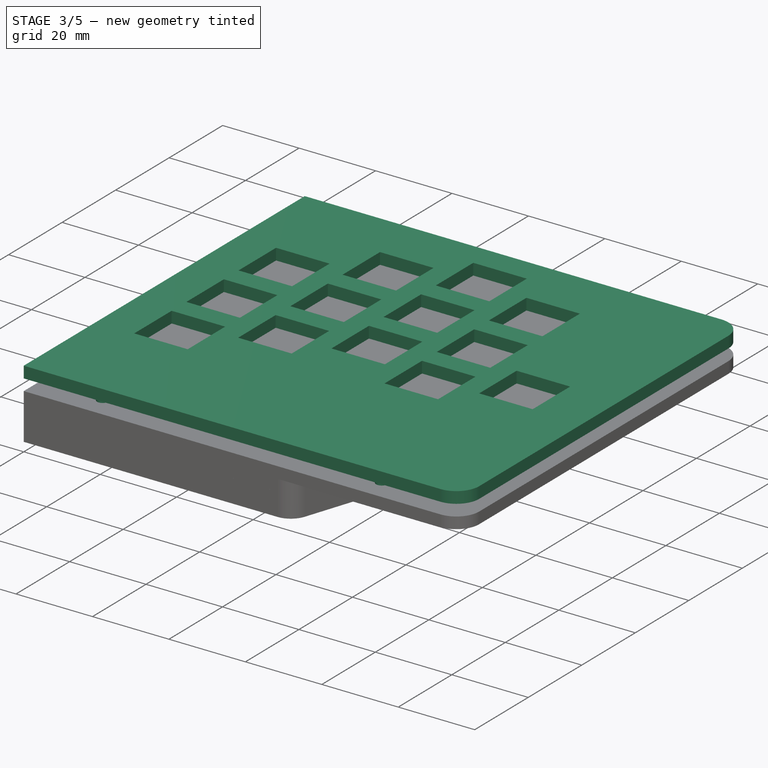
[diagram: stage 3 of 5 — iso view after this stage's code; geometry added in this stage tinted green]
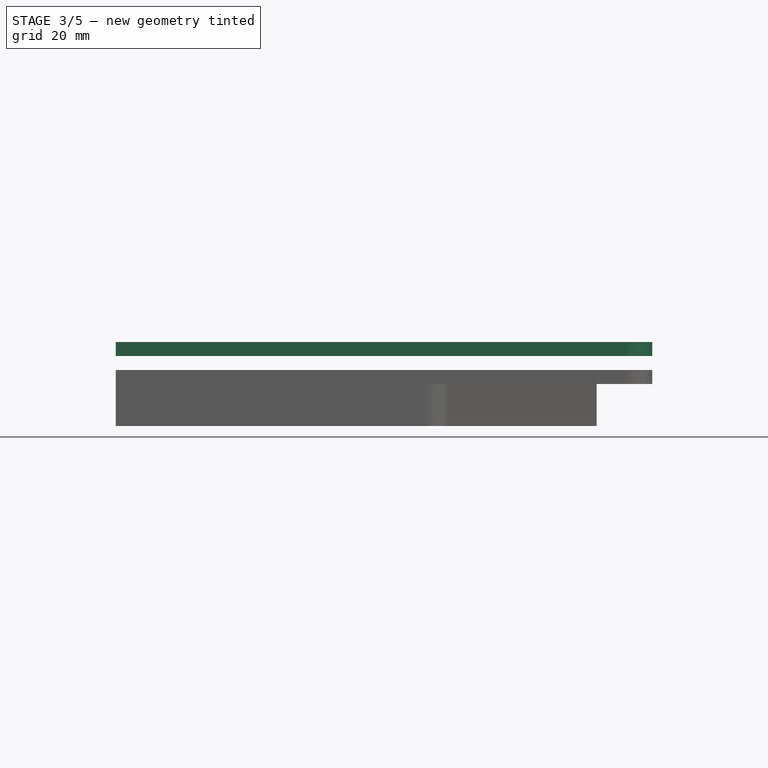
[diagram: stage 3 of 5 — front view after this stage's code; geometry added in this stage tinted green]
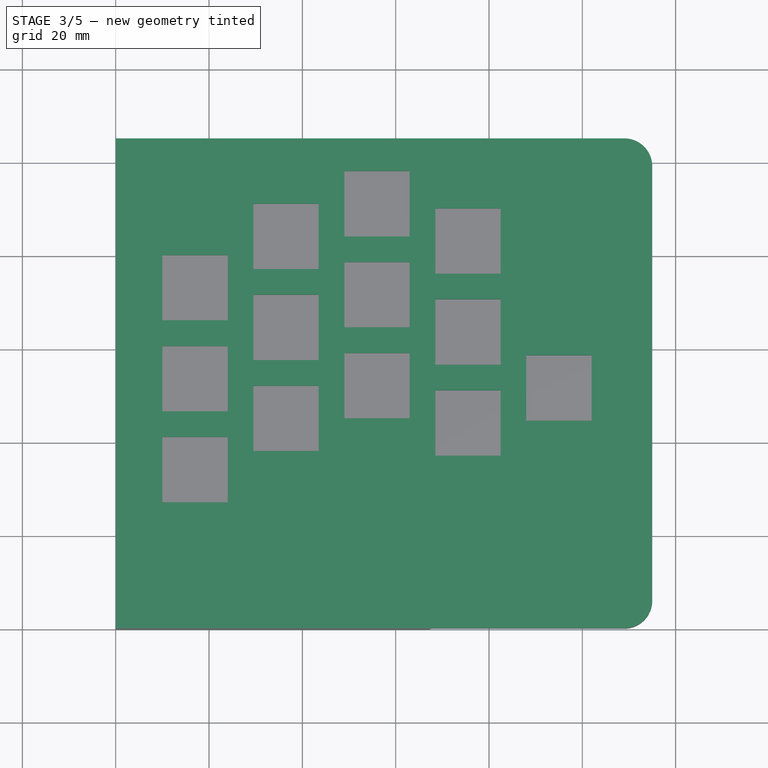
[diagram: stage 3 of 5 — top view after this stage's code; geometry added in this stage tinted green]
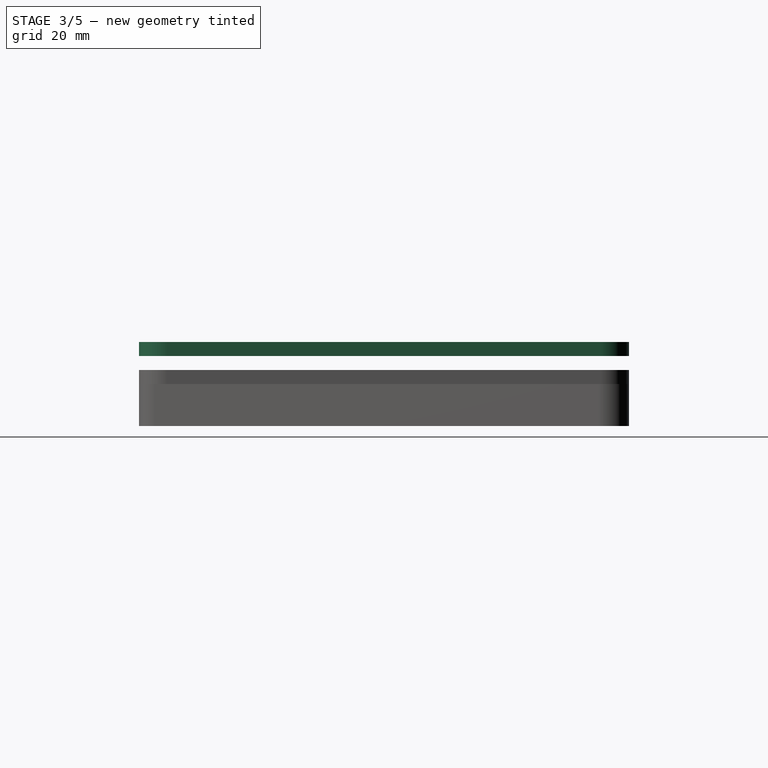
[diagram: stage 3 of 5 — right view after this stage's code; geometry added in this stage tinted green]
FEATURE [Sketcher::SketchObject] Sketch
  Placement = pos=(0,0,6) rot=(0,0,1;0rad)
  sketch-geometry (6):
    g0: LineSegment StartX=0 StartY=0 StartZ=0 EndX=109 EndY=0 EndZ=0
    g1: LineSegment StartX=115 StartY=6 StartZ=0 EndX=115 EndY=99 EndZ=0
    g2: LineSegment StartX=109 StartY=105 StartZ=0 EndX=0 EndY=105 EndZ=0
    g3: LineSegment StartX=0 StartY=105 StartZ=0 EndX=0 EndY=0 EndZ=0
    g4: ArcOfCircle CenterX=109 CenterY=99 CenterZ=0 NormalX=0 NormalY=0 NormalZ=1 Radius=6 StartAngle=0 EndAngle=1.5708
    g5: ArcOfCircle CenterX=109 CenterY=6 CenterZ=0 NormalX=0 NormalY=0 NormalZ=1 Radius=6 StartAngle=4.71239 EndAngle=6.28319
  constraints (15):
    c: Coincident(g2,g3)
    c: Coincident(g3,g0)
    c: Horizontal(g0)
    c: Horizontal(g2)
    c: Vertical(g1)
    c: Vertical(g3)
    c: Coincident(g0,g-1)
    c: DistanceY(g-1,g2) = 105
    c: Tangent(g1,g4) = -1.5708
    c: Tangent(g2,g4) = -1.5708
    c: Tangent(g0,g5) = -1.5708
    c: Tangent(g1,g5) = -1.5708
    c: DistanceX(g2,g1) = 115
    c: DistanceX(g4,g1) = 6
    c: DistanceX(g5,g1) = 6
FEATURE [PartDesign::Pad] Pad
  Length = 3
  Length2 = 100
  Placement = pos=(0,0,6) rot=(0,0,1;0rad)
  Sketch = -> Sketch
  Type = 0
FEATURE [Sketcher::SketchObject] Sketch001
  Placement = pos=(0,0,9) rot=(0,0,1;0rad)
  Support = -> Pad [Face8]
  sketch-geometry (16):
    g0: LineSegment StartX=10 StartY=27 StartZ=0 EndX=24 EndY=27 EndZ=0
    g1: LineSegment StartX=24 StartY=27 StartZ=0 EndX=24 EndY=41 EndZ=0
    g2: LineSegment StartX=24 StartY=41 StartZ=0 EndX=10 EndY=41 EndZ=0
    g3: LineSegment StartX=10 StartY=41 StartZ=0 EndX=10 EndY=27 EndZ=0
    g4: LineSegment StartX=29.5 StartY=38 StartZ=0 EndX=43.5 EndY=38 EndZ=0
    g5: LineSegment StartX=43.5 StartY=38 StartZ=0 EndX=43.5 EndY=52 EndZ=0
    g6: LineSegment StartX=43.5 StartY=52 StartZ=0 EndX=29.5 EndY=52 EndZ=0
    g7: LineSegment StartX=29.5 StartY=52 StartZ=0 EndX=29.5 EndY=38 EndZ=0
    g8: LineSegment StartX=49 StartY=45 StartZ=0 EndX=63 EndY=45 EndZ=0
    g9: LineSegment StartX=63 StartY=45 StartZ=0 EndX=63 EndY=59 EndZ=0
    g10: LineSegment StartX=63 StartY=59 StartZ=0 EndX=49 EndY=59 EndZ=0
    g11: LineSegment StartX=49 StartY=59 StartZ=0 EndX=49 EndY=45 EndZ=0
    g12: LineSegment StartX=68.5 StartY=37 StartZ=0 EndX=82.5 EndY=37 EndZ=0
    g13: LineSegment StartX=82.5 StartY=37 StartZ=0 EndX=82.5 EndY=51 EndZ=0
    g14: LineSegment StartX=82.5 StartY=51 StartZ=0 EndX=68.5 EndY=51 EndZ=0
    g15: LineSegment StartX=68.5 StartY=51 StartZ=0 EndX=68.5 EndY=37 EndZ=0
  constraints (48):
    c: Coincident(g0,g1)
    c: Coincident(g1,g2)
    c: Coincident(g2,g3)
    c: Coincident(g3,g0)
    c: Horizontal(g0)
    c: Horizontal(g2)
    c: Vertical(g1)
    c: Vertical(g3)
    c: DistanceX(g2,g1) = 14
    c: DistanceX(g-1,g0) = 10
    c: DistanceY(g0,g1) = 14
    c: Coincident(g4,g5)
    c: Coincident(g5,g6)
    c: Coincident(g6,g7)
    c: Coincident(g7,g4)
    c: Horizontal(g4)
    c: Horizontal(g6)
    c: Vertical(g5)
    c: Vertical(g7)
    c: Coincident(g8,g9)
    c: Coincident(g9,g10)
    c: Coincident(g10,g11)
    c: Coincident(g11,g8)
    c: Horizontal(g8)
    c: Horizontal(g10)
    c: Vertical(g9)
    c: Vertical(g11)
    c: Coincident(g12,g13)
    c: Coincident(g13,g14)
    c: Coincident(g14,g15)
    c: Coincident(g15,g12)
    c: Horizontal(g12)
    c: Horizontal(g14)
    c: Vertical(g13)
    c: Vertical(g15)
    c: Equal(g6,g2)
    c: Equal(g10,g6)
    c: Equal(g11,g7)
    c: Equal(g14,g11)
    c: Equal(g7,g1)
    c: Equal(g15,g9)
    c: DistanceX(g0,g4) = 5.5
    c: DistanceX(g4,g8) = 5.5
    c: DistanceX(g8,g12) = 5.5
    c: DistanceY(g0,g4) = 11
    c: DistanceY(g4,g8) = 7
    c: DistanceY(g12,g8) = 8
    c: DistanceY(g-1,g8) = 45
FEATURE [PartDesign::Pocket] Pocket
  Length = 5
  Placement = pos=(0,0,6) rot=(0,0,1;0rad)
  Sketch = -> Sketch001
  Type = 2
FEATURE [PartDesign::LinearPattern] LinearPattern
  Direction = -> Sketch001 [V_Axis]
  Length = 39
  Occurrences = 3
  Originals = -> [Pocket]
  Placement = pos=(0,0,6) rot=(0,0,1;0rad)
FEATURE [Sketcher::SketchObject] Sketch002
  Placement = pos=(0,0,9) rot=(0,0,1;0rad)
  Support = -> LinearPattern [Face5]
  sketch-geometry (4):
    g0: LineSegment StartX=88 StartY=58.5 StartZ=0 EndX=102 EndY=58.5 EndZ=0
    g1: LineSegment StartX=102 StartY=58.5 StartZ=0 EndX=102 EndY=44.5 EndZ=0
    g2: LineSegment StartX=102 StartY=44.5 StartZ=0 EndX=88 EndY=44.5 EndZ=0
    g3: LineSegment StartX=88 StartY=44.5 StartZ=0 EndX=88 EndY=58.5 EndZ=0
  constraints (12):
    c: Coincident(g0,g1)
    c: Coincident(g1,g2)
    c: Coincident(g2,g3)
    c: Coincident(g3,g0)
    c: Horizontal(g0)
    c: Horizontal(g2)
    c: Vertical(g1)
    c: Vertical(g3)
    c: DistanceX(g0,g0) = 14
    c: DistanceY(g2,g0) = 14
    c: DistanceX(g-1,g2) = 88
    c: DistanceY(g-1,g2) = 44.5
FEATURE [PartDesign::Pocket] Pocket001
  Length = 5
  Placement = pos=(0,0,6) rot=(0,0,1;0rad)
  Sketch = -> Sketch002
  Type = 2
FEATURE [App::DocumentObjectGroup] Grupp  label="2_big"
  Group = -> [Pad,Pocket,LinearPattern,Pocket001,LinearPattern001,Pocket007,Pocket018]
FEATURE [PartDesign::Pocket] Pocket019
  Length = 3
  Sketch = -> Sketch027
  Type = 0
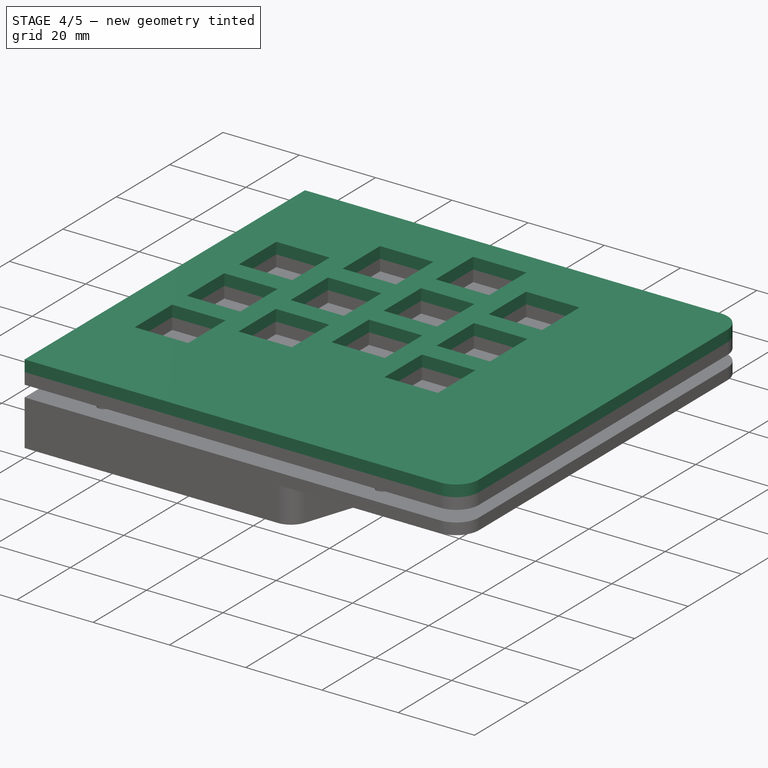
[diagram: stage 4 of 5 — iso view after this stage's code; geometry added in this stage tinted green]
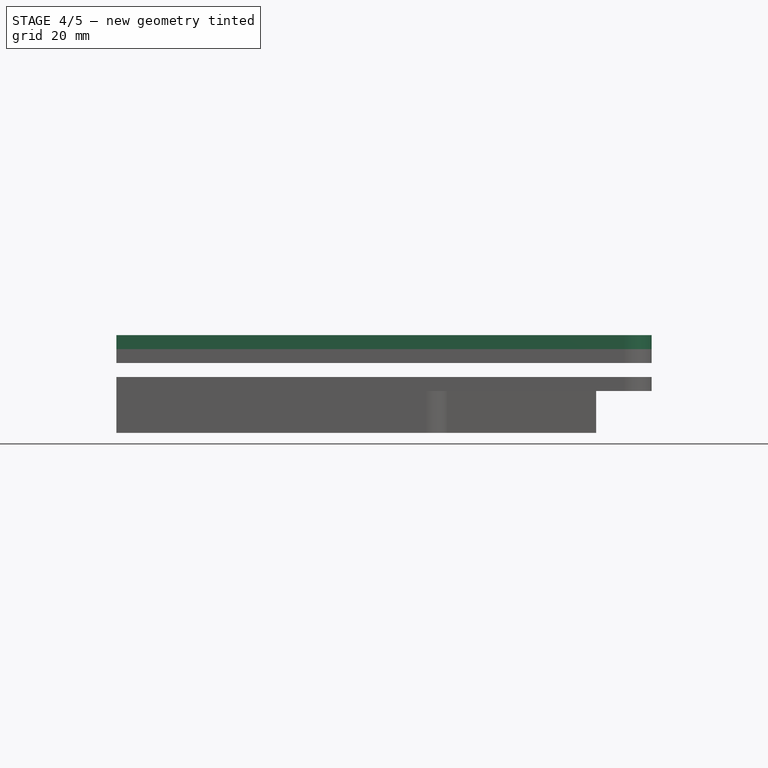
[diagram: stage 4 of 5 — front view after this stage's code; geometry added in this stage tinted green]
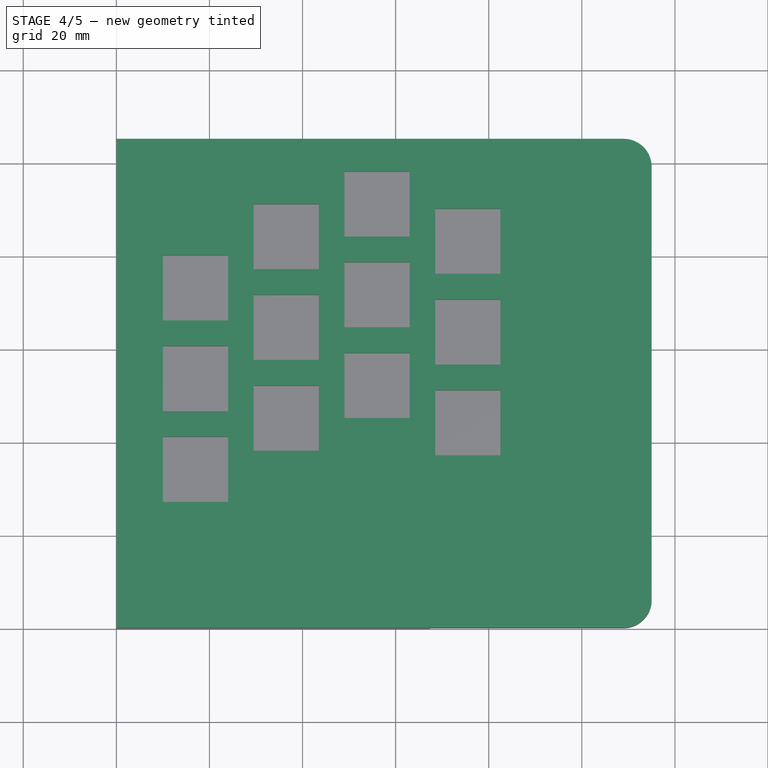
[diagram: stage 4 of 5 — top view after this stage's code; geometry added in this stage tinted green]
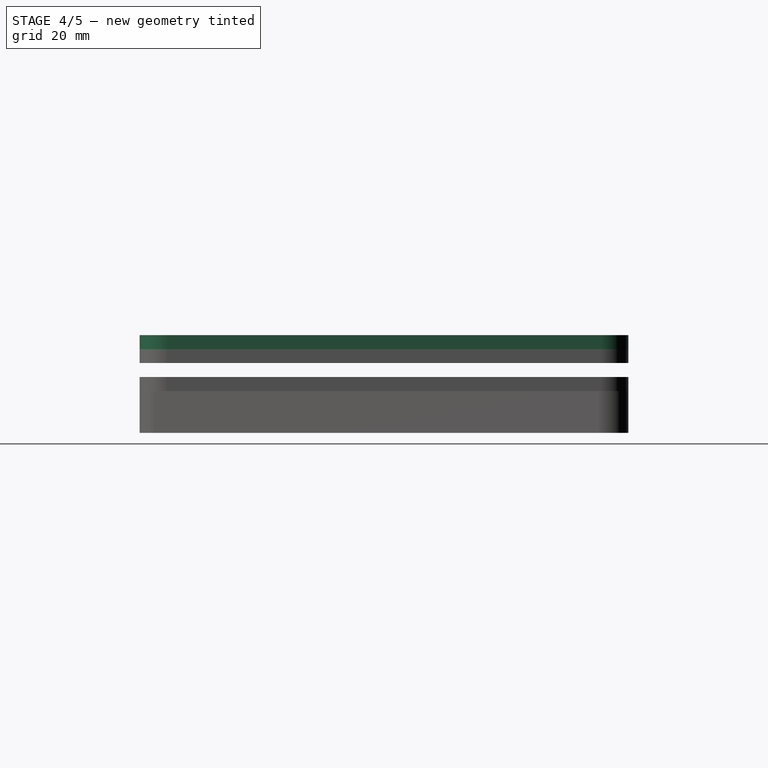
[diagram: stage 4 of 5 — right view after this stage's code; geometry added in this stage tinted green]
FEATURE [PartDesign::LinearPattern] LinearPattern001
  Direction = -> Sketch002 [V_Axis]
  Length = 19.5
  Occurrences = 2
  Originals = -> [Pocket001]
  Placement = pos=(0,0,6) rot=(0,0,1;0rad)
FEATURE [Sketcher::SketchObject] Sketch011
  Placement = pos=(0,0,9) rot=(0,0,1;0rad)
  sketch-geometry (6):
    g0: LineSegment StartX=0 StartY=0 StartZ=0 EndX=109 EndY=0 EndZ=0
    g1: LineSegment StartX=115 StartY=6 StartZ=0 EndX=115 EndY=99 EndZ=0
    g2: LineSegment StartX=109 StartY=105 StartZ=0 EndX=0 EndY=105 EndZ=0
    g3: LineSegment StartX=0 StartY=105 StartZ=0 EndX=0 EndY=0 EndZ=0
    g4: ArcOfCircle CenterX=109 CenterY=99 CenterZ=0 NormalX=0 NormalY=0 NormalZ=1 Radius=6 StartAngle=0 EndAngle=1.5708
    g5: ArcOfCircle CenterX=109 CenterY=6 CenterZ=0 NormalX=0 NormalY=0 NormalZ=1 Radius=6 StartAngle=4.71239 EndAngle=6.28319
  constraints (15):
    c: Coincident(g2,g3)
    c: Coincident(g3,g0)
    c: Horizontal(g0)
    c: Horizontal(g2)
    c: Vertical(g1)
    c: Vertical(g3)
    c: Coincident(g0,g-1)
    c: DistanceY(g-1,g2) = 105
    c: Tangent(g1,g4) = -1.5708
    c: Tangent(g2,g4) = -1.5708
    c: Tangent(g0,g5) = -1.5708
    c: Tangent(g1,g5) = -1.5708
    c: DistanceX(g2,g1) = 115
    c: DistanceX(g4,g1) = 6
    c: DistanceX(g5,g1) = 6
FEATURE [PartDesign::Pad] Pad006
  Length = 3
  Length2 = 100
  Placement = pos=(0,0,9) rot=(0,0,1;0rad)
  Sketch = -> Sketch011
  Type = 0
FEATURE [Sketcher::SketchObject] Sketch012
  Placement = pos=(0,0,12) rot=(0,0,1;0rad)
  Support = -> Pad006 [Face8]
  sketch-geometry (16):
    g0: LineSegment StartX=10 StartY=27 StartZ=0 EndX=24 EndY=27 EndZ=0
    g1: LineSegment StartX=24 StartY=27 StartZ=0 EndX=24 EndY=41 EndZ=0
    g2: LineSegment StartX=24 StartY=41 StartZ=0 EndX=10 EndY=41 EndZ=0
    g3: LineSegment StartX=10 StartY=41 StartZ=0 EndX=10 EndY=27 EndZ=0
    g4: LineSegment StartX=29.5 StartY=38 StartZ=0 EndX=43.5 EndY=38 EndZ=0
    g5: LineSegment StartX=43.5 StartY=38 StartZ=0 EndX=43.5 EndY=52 EndZ=0
    g6: LineSegment StartX=43.5 StartY=52 StartZ=0 EndX=29.5 EndY=52 EndZ=0
    g7: LineSegment StartX=29.5 StartY=52 StartZ=0 EndX=29.5 EndY=38 EndZ=0
    g8: LineSegment StartX=49 StartY=45 StartZ=0 EndX=63 EndY=45 EndZ=0
    g9: LineSegment StartX=63 StartY=45 StartZ=0 EndX=63 EndY=59 EndZ=0
    g10: LineSegment StartX=63 StartY=59 StartZ=0 EndX=49 EndY=59 EndZ=0
    g11: LineSegment StartX=49 StartY=59 StartZ=0 EndX=49 EndY=45 EndZ=0
    g12: LineSegment StartX=68.5 StartY=37 StartZ=0 EndX=82.5 EndY=37 EndZ=0
    g13: LineSegment StartX=82.5 StartY=37 StartZ=0 EndX=82.5 EndY=51 EndZ=0
    g14: LineSegment StartX=82.5 StartY=51 StartZ=0 EndX=68.5 EndY=51 EndZ=0
    g15: LineSegment StartX=68.5 StartY=51 StartZ=0 EndX=68.5 EndY=37 EndZ=0
  constraints (48):
    c: Coincident(g0,g1)
    c: Coincident(g1,g2)
    c: Coincident(g2,g3)
    c: Coincident(g3,g0)
    c: Horizontal(g0)
    c: Horizontal(g2)
    c: Vertical(g1)
    c: Vertical(g3)
    c: DistanceX(g2,g1) = 14
    c: DistanceX(g-1,g0) = 10
    c: DistanceY(g0,g1) = 14
    c: Coincident(g4,g5)
    c: Coincident(g5,g6)
    c: Coincident(g6,g7)
    c: Coincident(g7,g4)
    c: Horizontal(g4)
    c: Horizontal(g6)
    c: Vertical(g5)
    c: Vertical(g7)
    c: Coincident(g8,g9)
    c: Coincident(g9,g10)
    c: Coincident(g10,g11)
    c: Coincident(g11,g8)
    c: Horizontal(g8)
    c: Horizontal(g10)
    c: Vertical(g9)
    c: Vertical(g11)
    c: Coincident(g12,g13)
    c: Coincident(g13,g14)
    c: Coincident(g14,g15)
    c: Coincident(g15,g12)
    c: Horizontal(g12)
    c: Horizontal(g14)
    c: Vertical(g13)
    c: Vertical(g15)
    c: Equal(g6,g2)
    c: Equal(g10,g6)
    c: Equal(g11,g7)
    c: Equal(g14,g11)
    c: Equal(g7,g1)
    c: Equal(g15,g9)
    c: DistanceX(g0,g4) = 5.5
    c: DistanceX(g4,g8) = 5.5
    c: DistanceX(g8,g12) = 5.5
    c: DistanceY(g0,g4) = 11
    c: DistanceY(g4,g8) = 7
    c: DistanceY(g12,g8) = 8
    c: DistanceY(g-1,g8) = 45
FEATURE [PartDesign::Pocket] Pocket005
  Length = 5
  Placement = pos=(0,0,9) rot=(0,0,1;0rad)
  Sketch = -> Sketch012
  Type = 2
FEATURE [PartDesign::LinearPattern] LinearPattern002
  Direction = -> Sketch012 [V_Axis]
  Length = 39
  Occurrences = 3
  Originals = -> [Pocket005]
  Placement = pos=(0,0,9) rot=(0,0,1;0rad)
FEATURE [Sketcher::SketchObject] Sketch014
  Placement = pos=(0,0,9) rot=(0,0,1;0rad)
  Support = -> LinearPattern001 [Face5]
  sketch-geometry (8):
    g0: LineSegment StartX=30 StartY=31 StartZ=0 EndX=107 EndY=31 EndZ=0
    g1: LineSegment StartX=30 StartY=8 StartZ=0 EndX=30 EndY=31 EndZ=0
    g2: GeomPoint [constr] X=55 Y=45 Z=0
    g3: LineSegment StartX=30 StartY=8 StartZ=0 EndX=80.4401 EndY=8 EndZ=0
    g4: LineSegment StartX=80.4401 StartY=8 StartZ=0 EndX=82.3601 EndY=13.6845 EndZ=0
    g5: LineSegment StartX=82.3601 StartY=13.6845 StartZ=0 EndX=100.44 EndY=7.57791 EndZ=0
    g6: LineSegment StartX=100.44 StartY=7.57791 StartZ=0 EndX=107 EndY=27 EndZ=0
    g7: LineSegment StartX=107 StartY=27 StartZ=0 EndX=107 EndY=31 EndZ=0
  constraints (23):
    c: Coincident(g1,g0)
    c: Horizontal(g0)
    c: Vertical(g1)
    c: DistanceY(g-1,g1) = 8
    c: DistanceX(g-1,g2) = 55
    c: DistanceY(g-1,g2) = 45
    c: DistanceY(g0,g2) = 14
    c: DistanceX(g-1,g1) = 30
    c: Coincident(g1,g3)
    c: Horizontal(g3)
    c: Coincident(g3,g4)
    c: Coincident(g4,g5)
    c: Coincident(g5,g6)
    c: Coincident(g6,g7)
    c: Coincident(g7,g0)
    c: Vertical(g7)
    c: Perpendicular(g5,g4)
    c: Perpendicular(g6,g5)
    c: DistanceY(g6,g0) = 4
    c: DistanceX(g3,g5) = 20
    c: DistanceX(g0,g0) = 77
    c: Distance(g5,g6) = 20.5
    c: Distance(g4,g3) = 6
FEATURE [PartDesign::Pocket] Pocket007
  Length = 5
  Placement = pos=(0,0,6) rot=(0,0,1;0rad)
  Sketch = -> Sketch014
  Type = 2
FEATURE [App::DocumentObjectGroup] Grupp001  label="1_big"
  Group = -> [Pad006,Pocket005,LinearPattern002,Pocket006,LinearPattern003,Pocket017]
FEATURE [PartDesign::Pocket] Pocket018
  Length = 3
  Placement = pos=(0,0,6) rot=(0,0,1;0rad)
  Sketch = -> Sketch026
  Type = 0
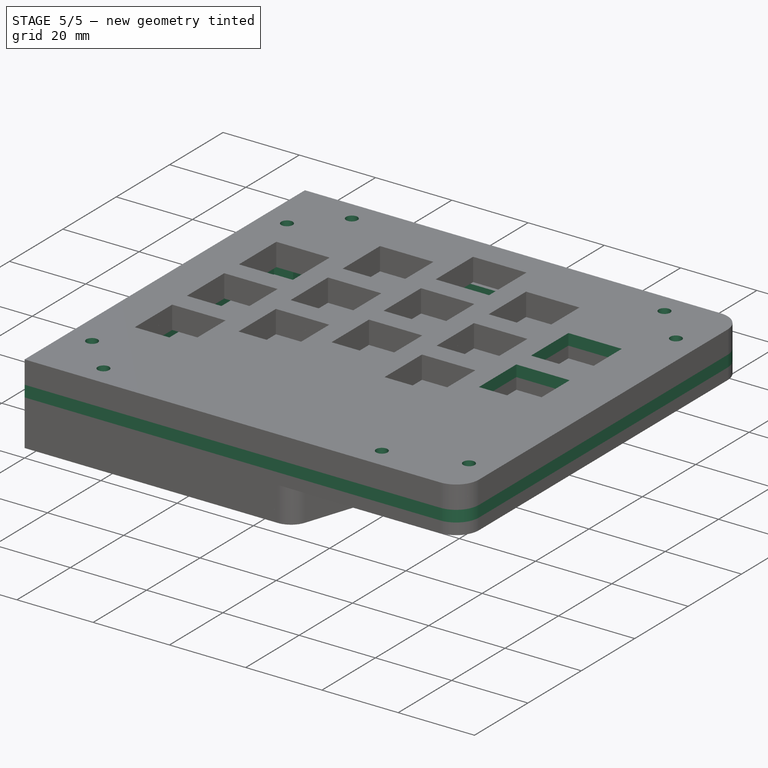
[diagram: stage 5 of 5 — iso view after this stage's code; geometry added in this stage tinted green]
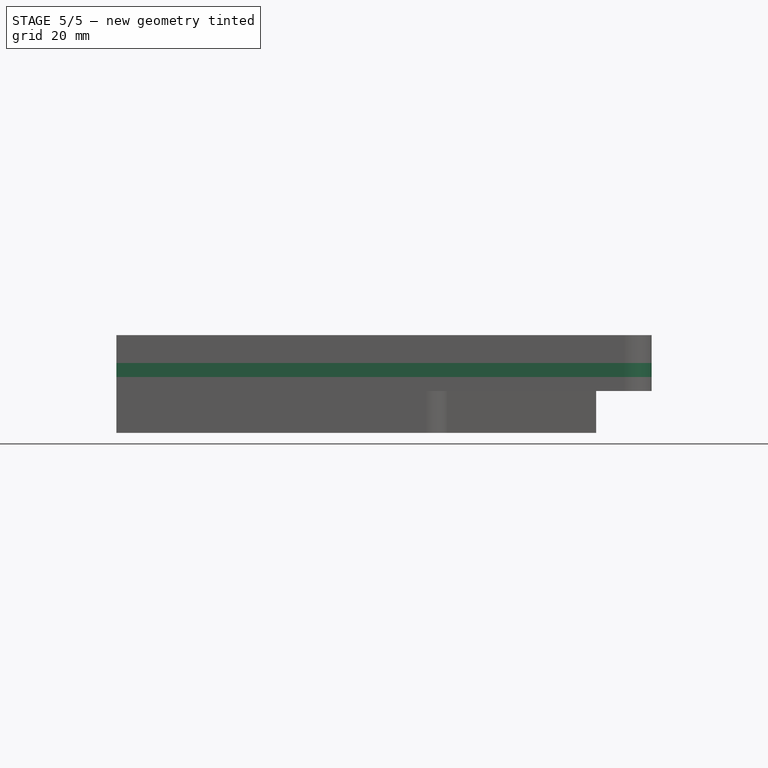
[diagram: stage 5 of 5 — front view after this stage's code; geometry added in this stage tinted green]
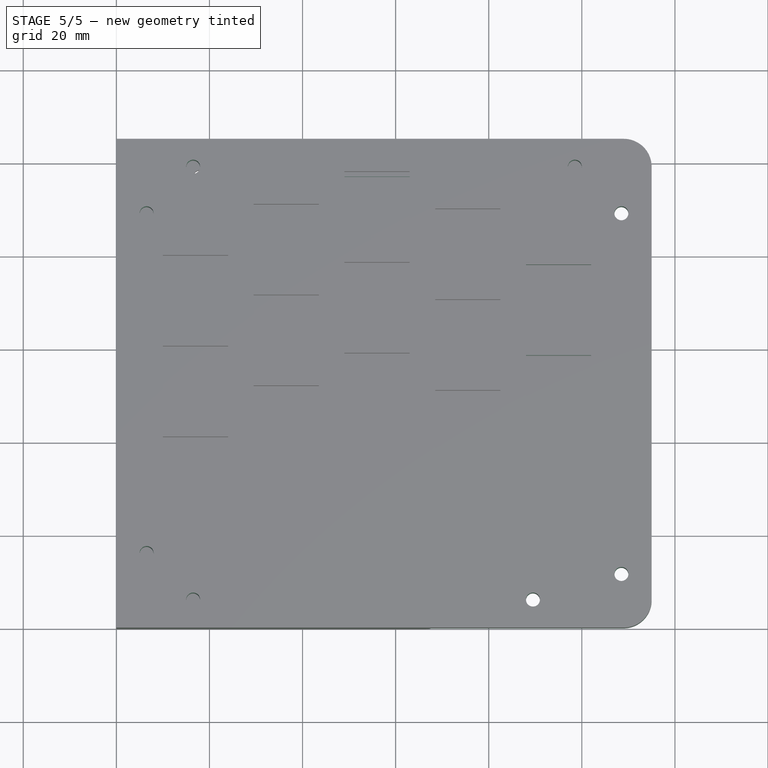
[diagram: stage 5 of 5 — top view after this stage's code; geometry added in this stage tinted green]
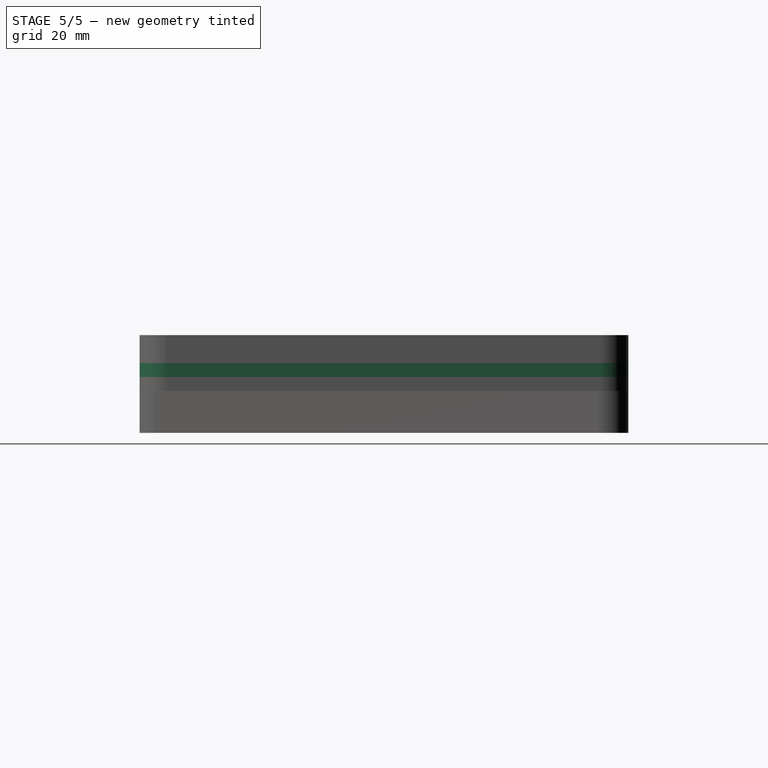
[diagram: stage 5 of 5 — right view after this stage's code; geometry added in this stage tinted green]
FEATURE [Sketcher::SketchObject] Sketch013
  Placement = pos=(0,0,12) rot=(0,0,1;0rad)
  Support = -> LinearPattern002 [Face5]
  sketch-geometry (4):
    g0: LineSegment StartX=88 StartY=58.5 StartZ=0 EndX=102 EndY=58.5 EndZ=0
    g1: LineSegment StartX=102 StartY=58.5 StartZ=0 EndX=102 EndY=44.5 EndZ=0
    g2: LineSegment StartX=102 StartY=44.5 StartZ=0 EndX=88 EndY=44.5 EndZ=0
    g3: LineSegment StartX=88 StartY=44.5 StartZ=0 EndX=88 EndY=58.5 EndZ=0
  constraints (12):
    c: Coincident(g0,g1)
    c: Coincident(g1,g2)
    c: Coincident(g2,g3)
    c: Coincident(g3,g0)
    c: Horizontal(g0)
    c: Horizontal(g2)
    c: Vertical(g1)
    c: Vertical(g3)
    c: DistanceX(g0,g0) = 14
    c: DistanceY(g2,g0) = 14
    c: DistanceX(g-1,g2) = 88
    c: DistanceY(g-1,g2) = 44.5
FEATURE [PartDesign::Pocket] Pocket006
  Length = 5
  Placement = pos=(0,0,9) rot=(0,0,1;0rad)
  Sketch = -> Sketch013
  Type = 2
FEATURE [PartDesign::LinearPattern] LinearPattern003
  Direction = -> Sketch013 [V_Axis]
  Length = 19.5
  Occurrences = 2
  Originals = -> [Pocket006]
  Placement = pos=(0,0,9) rot=(0,0,1;0rad)
FEATURE [PartDesign::Pad] Pad002
  Length = 3
  Length2 = 100
  Placement = pos=(0,0,3) rot=(0,0,1;0rad)
  Sketch = -> Sketch005
  Type = 0
FEATURE [Sketcher::SketchObject] Sketch023
  Placement = pos=(0,0,6) rot=(0,0,1;0rad)
  Support = -> Pad002 [Face8]
  sketch-geometry (33):
    g0: LineSegment [constr] StartX=0 StartY=105 StartZ=0 EndX=105 EndY=105 EndZ=0
    g1: LineSegment [constr] StartX=105 StartY=105 StartZ=0 EndX=105 EndY=0 EndZ=0
    g2: LineSegment [constr] StartX=105 StartY=0 StartZ=0 EndX=0 EndY=0 EndZ=0
    g3: LineSegment [constr] StartX=0 StartY=0 StartZ=0 EndX=0 EndY=105 EndZ=0
    g4: LineSegment [constr] StartX=0 StartY=0 StartZ=0 EndX=70 EndY=0 EndZ=0
    g5: LineSegment [constr] StartX=70 StartY=0 StartZ=0 EndX=105 EndY=105 EndZ=0
    g6: LineSegment [constr] StartX=8 StartY=97 StartZ=0 EndX=105 EndY=97 EndZ=0
    g7: LineSegment [constr] StartX=105 StartY=8 StartZ=0 EndX=8 EndY=8 EndZ=0
    g8: LineSegment [constr] StartX=8 StartY=8 StartZ=0 EndX=8 EndY=97 EndZ=0
    g9: LineSegment StartX=87.2912 StartY=12.4272 StartZ=0 EndX=91.7184 EndY=25.7088 EndZ=0
    g10: LineSegment StartX=91.7184 StartY=25.7088 StartZ=0 EndX=105 EndY=21.2816 EndZ=0
    g11: LineSegment StartX=105 StartY=21.2816 StartZ=0 EndX=100.573 EndY=8 EndZ=0
    g12: LineSegment StartX=100.573 StartY=8 StartZ=0 EndX=87.2912 EndY=12.4272 EndZ=0
    g13: LineSegment StartX=80.018 StartY=8 StartZ=0 EndX=87.7785 EndY=31.2816 EndZ=0
    g14: LineSegment StartX=87.7785 StartY=31.2816 StartZ=0 EndX=105 EndY=31.2816 EndZ=0
    g15: LineSegment StartX=80.018 StartY=8 StartZ=0 EndX=23 EndY=8 EndZ=0
    g16: LineSegment StartX=23 StartY=8 StartZ=0 EndX=23 EndY=13 EndZ=0
    g17: LineSegment StartX=23 StartY=13 StartZ=0 EndX=13 EndY=13 EndZ=0
    g18: LineSegment StartX=13 StartY=13 StartZ=0 EndX=13 EndY=23 EndZ=0
    g19: LineSegment StartX=13 StartY=23 StartZ=0 EndX=8 EndY=23 EndZ=0
    g20: LineSegment StartX=8 StartY=23 StartZ=0 EndX=8 EndY=82 EndZ=0
    g21: LineSegment StartX=8 StartY=82 StartZ=0 EndX=13 EndY=82 EndZ=0
    g22: LineSegment StartX=13 StartY=82 StartZ=0 EndX=13 EndY=92 EndZ=0
    g23: LineSegment StartX=13 StartY=92 StartZ=0 EndX=23 EndY=92 EndZ=0
    g24: LineSegment StartX=90 StartY=97 StartZ=0 EndX=90 EndY=92 EndZ=0
    g25: LineSegment StartX=90 StartY=92 StartZ=0 EndX=100 EndY=92 EndZ=0
    g26: LineSegment StartX=100 StartY=92 StartZ=0 EndX=100 EndY=82 EndZ=0
    g27: LineSegment StartX=100 StartY=82 StartZ=0 EndX=105 EndY=82 EndZ=0
    g28: LineSegment StartX=105 StartY=31.2816 StartZ=0 EndX=105 EndY=82 EndZ=0
    g29: LineSegment StartX=23 StartY=92 StartZ=0 EndX=23 EndY=105 EndZ=0
    g30: LineSegment StartX=23 StartY=105 StartZ=0 EndX=38 EndY=105 EndZ=0
    g31: LineSegment StartX=38 StartY=105 StartZ=0 EndX=38 EndY=97 EndZ=0
    g32: LineSegment StartX=38 StartY=97 StartZ=0 EndX=90 EndY=97 EndZ=0
  constraints (99):
    c: Coincident(g0,g1)
    c: Coincident(g1,g2)
    c: Coincident(g2,g3)
    c: Coincident(g3,g0)
    c: Horizontal(g0)
    c: Horizontal(g2)
    c: Vertical(g1)
    c: Vertical(g3)
    c: PointOnObject(g1,g-1)
    c: DistanceY(g2,g0) = 105
    c: DistanceX(g0,g0) = 105
    c: Coincident(g4,g2)
    c: PointOnObject(g4,g2)
    c: DistanceX(g2,g4) = 70
    c: Coincident(g5,g4)
    c: Coincident(g5,g0)
    c: Coincident(g7,g8)
    c: Coincident(g8,g6)
    c: Horizontal(g6)
    c: Horizontal(g7)
    c: Vertical(g8)
    c: DistanceY(g6,g0) = 8
    c: DistanceX(g0,g6) = 8
    c: DistanceY(g2,g7) = 8
    c: PointOnObject(g7,g1)
    c: PointOnObject(g6,g1)
    c: Coincident(g9,g10)
    c: Coincident(g10,g11)
    c: Coincident(g11,g12)
    c: Coincident(g12,g9)
    c: Perpendicular(g10,g9)
    c: Perpendicular(g11,g10)
    c: Perpendicular(g12,g11)
    c: Distance(g10,g9) = 14
    c: Distance(g9,g9) = 14
    c: PointOnObject(g10,g1)
    c: PointOnObject(g11,g7)
    c: Parallel(g9,g5)
    c: Coincident(g2,g-1)
    c: PointOnObject(g13,g7)
    c: Coincident(g13,g14)
    c: PointOnObject(g14,g1)
    c: Horizontal(g14)
    c: Distance(g9,g13) = 5.5
    c: Distance(g9,g13) = 5.5
    c: DistanceY(g10,g14) = 10
    c: PointOnObject(g15,g7)
    c: Coincident(g15,g16)
    c: Vertical(g16)
    c: Coincident(g16,g17)
    c: Horizontal(g17)
    c: Coincident(g17,g18)
    c: Vertical(g18)
    c: Coincident(g18,g19)
    c: Horizontal(g19)
    c: DistanceX(g7,g15) = 15
    c: DistanceY(g7,g19) = 15
    c: Equal(g17,g18)
    c: DistanceY(g15,g16) = 5
    c: Coincident(g15,g13)
    c: Coincident(g19,g20)
    c: PointOnObject(g20,g8)
    c: Vertical(g20)
    c: Coincident(g20,g21)
    c: Horizontal(g21)
    c: Coincident(g21,g22)
    c: Vertical(g22)
    c: Coincident(g22,g23)
    c: Horizontal(g23)
    c: PointOnObject(g24,g6)
    c: Vertical(g24)
    c: Coincident(g24,g25)
    c: Horizontal(g25)
    c: Coincident(g25,g26)
    c: Vertical(g26)
    c: Coincident(g26,g27)
    c: PointOnObject(g27,g1)
    c: Horizontal(g27)
    c: Equal(g22,g23)
    c: DistanceX(g20,g21) = 5
    c: Equal(g25,g26)
    c: DistanceY(g27,g6) = 15
    c: DistanceX(g24,g6) = 15
    c: DistanceY(g24,g24) = 5
    c: Coincident(g28,g14)
    c: Coincident(g28,g27)
    c: Coincident(g23,g29)
    c: PointOnObject(g29,g0)
    c: Vertical(g29)
    c: Coincident(g29,g30)
    c: Horizontal(g30)
    c: Coincident(g30,g31)
    c: PointOnObject(g31,g6)
    c: Vertical(g31)
    c: Coincident(g31,g32)
    c: Coincident(g32,g24)
    c: DistanceY(g20,g6) = 15
    c: Distance(g6,g29) = 15
    c: DistanceX(g29,g30) = 15
FEATURE [PartDesign::Pocket] Pocket015
  Length = 5
  Placement = pos=(0,0,3) rot=(0,0,1;0rad)
  Sketch = -> Sketch023
  Type = 2
FEATURE [Sketcher::SketchObject] Sketch024
  Placement = pos=(0,0,6) rot=(0,0,1;0rad)
  Support = -> Pocket015 [Face5]
  sketch-geometry (16):
    g0: LineSegment [constr] StartX=0 StartY=105 StartZ=0 EndX=115 EndY=105 EndZ=0
    g1: LineSegment [constr] StartX=115 StartY=105 StartZ=0 EndX=115 EndY=0 EndZ=0
    g2: LineSegment [constr] StartX=115 StartY=0 StartZ=0 EndX=0 EndY=0 EndZ=0
    g3: LineSegment [constr] StartX=0 StartY=0 StartZ=0 EndX=0 EndY=105 EndZ=0
    g4: LineSegment [constr] StartX=6.5 StartY=99 StartZ=0 EndX=108.5 EndY=99 EndZ=0
    g5: LineSegment [constr] StartX=108.5 StartY=99 StartZ=0 EndX=108.5 EndY=6 EndZ=0
    g6: LineSegment [constr] StartX=108.5 StartY=6 StartZ=0 EndX=6.5 EndY=6 EndZ=0
    g7: LineSegment [constr] StartX=6.5 StartY=6 StartZ=0 EndX=6.5 EndY=99 EndZ=0
    g8: Circle CenterX=89.5 CenterY=6 CenterZ=0 NormalX=0 NormalY=0 NormalZ=1 Radius=1.5
    g9: Circle CenterX=16.5 CenterY=6 CenterZ=0 NormalX=0 NormalY=0 NormalZ=1 Radius=1.5
    g10: Circle CenterX=6.5 CenterY=16 CenterZ=0 NormalX=0 NormalY=0 NormalZ=1 Radius=1.5
    g11: Circle CenterX=6.5 CenterY=89 CenterZ=0 NormalX=0 NormalY=0 NormalZ=1 Radius=1.5
    g12: Circle CenterX=16.5 CenterY=99 CenterZ=0 NormalX=0 NormalY=0 NormalZ=1 Radius=1.5
    g13: Circle CenterX=98.5 CenterY=99 CenterZ=0 NormalX=0 NormalY=0 NormalZ=1 Radius=1.5
    g14: Circle CenterX=108.5 CenterY=89 CenterZ=0 NormalX=0 NormalY=0 NormalZ=1 Radius=1.5
    g15: Circle CenterX=108.5 CenterY=11.5 CenterZ=0 NormalX=0 NormalY=0 NormalZ=1 Radius=1.5
  constraints (47):
    c: Coincident(g0,g1)
    c: Coincident(g1,g2)
    c: Coincident(g2,g3)
    c: Coincident(g3,g0)
    c: Horizontal(g0)
    c: Horizontal(g2)
    c: Vertical(g1)
    c: Vertical(g3)
    c: Coincident(g2,g-1)
    c: DistanceY(g3,g3) = 105
    c: DistanceX(g0,g0) = 115
    c: Coincident(g4,g5)
    c: Coincident(g5,g6)
    c: Coincident(g6,g7)
    c: Coincident(g7,g4)
    c: Horizontal(g4)
    c: Horizontal(g6)
    c: Vertical(g5)
    c: Vertical(g7)
    c: DistanceY(g-1,g6) = 6
    c: DistanceX(g-1,g6) = 6.5
    c: DistanceX(g4,g0) = 6.5
    c: DistanceY(g4,g0) = 6
    c: PointOnObject(g8,g6)
    c: Radius(g8) = 1.5
    c: PointOnObject(g9,g6)
    c: PointOnObject(g11,g7)
    c: PointOnObject(g12,g4)
    c: PointOnObject(g13,g4)
    c: PointOnObject(g14,g5)
    c: Radius(g14) = 1.5
    c: Radius(g13) = 1.5
    c: Radius(g10) = 1.5
    c: Radius(g9) = 1.5
    c: Radius(g11) = 1.5
    c: Radius(g12) = 1.5
    c: PointOnObject(g10,g7)
    c: DistanceX(g8,g5) = 19
    c: PointOnObject(g15,g5)
    c: Radius(g15) = 1.5
    c: DistanceY(g5,g15) = 5.5
    c: DistanceX(g6,g9) = 10
    c: DistanceY(g6,g10) = 10
    c: DistanceY(g11,g4) = 10
    c: DistanceX(g4,g12) = 10
    c: DistanceX(g13,g4) = 10
    c: DistanceY(g14,g4) = 10
FEATURE [Sketcher::SketchObject] Sketch025
  Placement = pos=(0,0,12) rot=(0,0,1;0rad)
  Support = -> LinearPattern003 [Face5]
  sketch-geometry (16):
    g0: LineSegment [constr] StartX=0 StartY=105 StartZ=0 EndX=115 EndY=105 EndZ=0
    g1: LineSegment [constr] StartX=115 StartY=105 StartZ=0 EndX=115 EndY=0 EndZ=0
    g2: LineSegment [constr] StartX=115 StartY=0 StartZ=0 EndX=0 EndY=0 EndZ=0
    g3: LineSegment [constr] StartX=0 StartY=0 StartZ=0 EndX=0 EndY=105 EndZ=0
    g4: LineSegment [constr] StartX=6.5 StartY=99 StartZ=0 EndX=108.5 EndY=99 EndZ=0
    g5: LineSegment [constr] StartX=108.5 StartY=99 StartZ=0 EndX=108.5 EndY=6 EndZ=0
    g6: LineSegment [constr] StartX=108.5 StartY=6 StartZ=0 EndX=6.5 EndY=6 EndZ=0
    g7: LineSegment [constr] StartX=6.5 StartY=6 StartZ=0 EndX=6.5 EndY=99 EndZ=0
    g8: Circle CenterX=89.5 CenterY=6 CenterZ=0 NormalX=0 NormalY=0 NormalZ=1 Radius=1.5
    g9: Circle CenterX=16.5 CenterY=6 CenterZ=0 NormalX=0 NormalY=0 NormalZ=1 Radius=1.5
    g10: Circle CenterX=6.5 CenterY=16 CenterZ=0 NormalX=0 NormalY=0 NormalZ=1 Radius=1.5
    g11: Circle CenterX=6.5 CenterY=89 CenterZ=0 NormalX=0 NormalY=0 NormalZ=1 Radius=1.5
    g12: Circle CenterX=16.5 CenterY=99 CenterZ=0 NormalX=0 NormalY=0 NormalZ=1 Radius=1.5
    g13: Circle CenterX=98.5 CenterY=99 CenterZ=0 NormalX=0 NormalY=0 NormalZ=1 Radius=1.5
    g14: Circle CenterX=108.5 CenterY=89 CenterZ=0 NormalX=0 NormalY=0 NormalZ=1 Radius=1.5
    g15: Circle CenterX=108.5 CenterY=11.5 CenterZ=0 NormalX=0 NormalY=0 NormalZ=1 Radius=1.5
  constraints (47):
    c: Coincident(g0,g1)
    c: Coincident(g1,g2)
    c: Coincident(g2,g3)
    c: Coincident(g3,g0)
    c: Horizontal(g0)
    c: Horizontal(g2)
    c: Vertical(g1)
    c: Vertical(g3)
    c: Coincident(g2,g-1)
    c: DistanceY(g3,g3) = 105
    c: DistanceX(g0,g0) = 115
    c: Coincident(g4,g5)
    c: Coincident(g5,g6)
    c: Coincident(g6,g7)
    c: Coincident(g7,g4)
    c: Horizontal(g4)
    c: Horizontal(g6)
    c: Vertical(g5)
    c: Vertical(g7)
    c: DistanceY(g-1,g6) = 6
    c: DistanceX(g-1,g6) = 6.5
    c: DistanceX(g4,g0) = 6.5
    c: DistanceY(g4,g0) = 6
    c: PointOnObject(g8,g6)
    c: Radius(g8) = 1.5
    c: PointOnObject(g9,g6)
    c: PointOnObject(g11,g7)
    c: PointOnObject(g12,g4)
    c: PointOnObject(g13,g4)
    c: PointOnObject(g14,g5)
    c: Radius(g14) = 1.5
    c: Radius(g13) = 1.5
    c: Radius(g10) = 1.5
    c: Radius(g9) = 1.5
    c: Radius(g11) = 1.5
    c: Radius(g12) = 1.5
    c: PointOnObject(g10,g7)
    c: DistanceX(g8,g5) = 19
    c: PointOnObject(g15,g5)
    c: Radius(g15) = 1.5
    c: DistanceY(g5,g15) = 5.5
    c: DistanceX(g6,g9) = 10
    c: DistanceY(g6,g10) = 10
    c: DistanceY(g11,g4) = 10
    c: DistanceX(g4,g12) = 10
    c: DistanceX(g13,g4) = 10
    c: DistanceY(g14,g4) = 10
FEATURE [Sketcher::SketchObject] Sketch026
  Placement = pos=(0,0,9) rot=(0,0,1;0rad)
  Support = -> Pocket007 [Face5]
  sketch-geometry (16):
    g0: LineSegment [constr] StartX=0 StartY=105 StartZ=0 EndX=115 EndY=105 EndZ=0
    g1: LineSegment [constr] StartX=115 StartY=105 StartZ=0 EndX=115 EndY=0 EndZ=0
    g2: LineSegment [constr] StartX=115 StartY=0 StartZ=0 EndX=0 EndY=0 EndZ=0
    g3: LineSegment [constr] StartX=0 StartY=0 StartZ=0 EndX=0 EndY=105 EndZ=0
    g4: LineSegment [constr] StartX=6.5 StartY=99 StartZ=0 EndX=108.5 EndY=99 EndZ=0
    g5: LineSegment [constr] StartX=108.5 StartY=99 StartZ=0 EndX=108.5 EndY=6 EndZ=0
    g6: LineSegment [constr] StartX=108.5 StartY=6 StartZ=0 EndX=6.5 EndY=6 EndZ=0
    g7: LineSegment [constr] StartX=6.5 StartY=6 StartZ=0 EndX=6.5 EndY=99 EndZ=0
    g8: Circle CenterX=89.5 CenterY=6 CenterZ=0 NormalX=0 NormalY=0 NormalZ=1 Radius=1.5
    g9: Circle CenterX=16.5 CenterY=6 CenterZ=0 NormalX=0 NormalY=0 NormalZ=1 Radius=1.5
    g10: Circle CenterX=6.5 CenterY=16 CenterZ=0 NormalX=0 NormalY=0 NormalZ=1 Radius=1.5
    g11: Circle CenterX=6.5 CenterY=89 CenterZ=0 NormalX=0 NormalY=0 NormalZ=1 Radius=1.5
    g12: Circle CenterX=16.5 CenterY=99 CenterZ=0 NormalX=0 NormalY=0 NormalZ=1 Radius=1.5
    g13: Circle CenterX=98.5 CenterY=99 CenterZ=0 NormalX=0 NormalY=0 NormalZ=1 Radius=1.5
    g14: Circle CenterX=108.5 CenterY=89 CenterZ=0 NormalX=0 NormalY=0 NormalZ=1 Radius=1.5
    g15: Circle CenterX=108.5 CenterY=11.5 CenterZ=0 NormalX=0 NormalY=0 NormalZ=1 Radius=1.5
  constraints (47):
    c: Coincident(g0,g1)
    c: Coincident(g1,g2)
    c: Coincident(g2,g3)
    c: Coincident(g3,g0)
    c: Horizontal(g0)
    c: Horizontal(g2)
    c: Vertical(g1)
    c: Vertical(g3)
    c: Coincident(g2,g-1)
    c: DistanceY(g3,g3) = 105
    c: DistanceX(g0,g0) = 115
    c: Coincident(g4,g5)
    c: Coincident(g5,g6)
    c: Coincident(g6,g7)
    c: Coincident(g7,g4)
    c: Horizontal(g4)
    c: Horizontal(g6)
    c: Vertical(g5)
    c: Vertical(g7)
    c: DistanceY(g-1,g6) = 6
    c: DistanceX(g-1,g6) = 6.5
    c: DistanceX(g4,g0) = 6.5
    c: DistanceY(g4,g0) = 6
    c: PointOnObject(g8,g6)
    c: Radius(g8) = 1.5
    c: PointOnObject(g9,g6)
    c: PointOnObject(g11,g7)
    c: PointOnObject(g12,g4)
    c: PointOnObject(g13,g4)
    c: PointOnObject(g14,g5)
    c: Radius(g14) = 1.5
    c: Radius(g13) = 1.5
    c: Radius(g10) = 1.5
    c: Radius(g9) = 1.5
    c: Radius(g11) = 1.5
    c: Radius(g12) = 1.5
    c: PointOnObject(g10,g7)
    c: DistanceX(g8,g5) = 19
    c: PointOnObject(g15,g5)
    c: Radius(g15) = 1.5
    c: DistanceY(g5,g15) = 5.5
    c: DistanceX(g6,g9) = 10
    c: DistanceY(g6,g10) = 10
    c: DistanceY(g11,g4) = 10
    c: DistanceX(g4,g12) = 10
    c: DistanceX(g13,g4) = 10
    c: DistanceY(g14,g4) = 10
FEATURE [Sketcher::SketchObject] Sketch027
  Placement = pos=(0,0,3) rot=(0,0,1;0rad)
  Support = -> Pocket008 [Face5]
  sketch-geometry (16):
    g0: LineSegment [constr] StartX=0 StartY=105 StartZ=0 EndX=115 EndY=105 EndZ=0
    g1: LineSegment [constr] StartX=115 StartY=105 StartZ=0 EndX=115 EndY=0 EndZ=0
    g2: LineSegment [constr] StartX=115 StartY=0 StartZ=0 EndX=0 EndY=0 EndZ=0
    g3: LineSegment [constr] StartX=0 StartY=0 StartZ=0 EndX=0 EndY=105 EndZ=0
    g4: LineSegment [constr] StartX=6.5 StartY=99 StartZ=0 EndX=108.5 EndY=99 EndZ=0
    g5: LineSegment [constr] StartX=108.5 StartY=99 StartZ=0 EndX=108.5 EndY=6 EndZ=0
    g6: LineSegment [constr] StartX=108.5 StartY=6 StartZ=0 EndX=6.5 EndY=6 EndZ=0
    g7: LineSegment [constr] StartX=6.5 StartY=6 StartZ=0 EndX=6.5 EndY=99 EndZ=0
    g8: Circle CenterX=89.5 CenterY=6 CenterZ=0 NormalX=0 NormalY=0 NormalZ=1 Radius=1.5
    g9: Circle CenterX=16.5 CenterY=6 CenterZ=0 NormalX=0 NormalY=0 NormalZ=1 Radius=1.5
    g10: Circle CenterX=6.5 CenterY=16 CenterZ=0 NormalX=0 NormalY=0 NormalZ=1 Radius=1.5
    g11: Circle CenterX=6.5 CenterY=89 CenterZ=0 NormalX=0 NormalY=0 NormalZ=1 Radius=1.5
    g12: Circle CenterX=16.5 CenterY=99 CenterZ=0 NormalX=0 NormalY=0 NormalZ=1 Radius=1.5
    g13: Circle CenterX=98.5 CenterY=99 CenterZ=0 NormalX=0 NormalY=0 NormalZ=1 Radius=1.5
    g14: Circle CenterX=108.5 CenterY=89 CenterZ=0 NormalX=0 NormalY=0 NormalZ=1 Radius=1.5
    g15: Circle CenterX=108.5 CenterY=11.5 CenterZ=0 NormalX=0 NormalY=0 NormalZ=1 Radius=1.5
  constraints (47):
    c: Coincident(g0,g1)
    c: Coincident(g1,g2)
    c: Coincident(g2,g3)
    c: Coincident(g3,g0)
    c: Horizontal(g0)
    c: Horizontal(g2)
    c: Vertical(g1)
    c: Vertical(g3)
    c: Coincident(g2,g-1)
    c: DistanceY(g3,g3) = 105
    c: DistanceX(g0,g0) = 115
    c: Coincident(g4,g5)
    c: Coincident(g5,g6)
    c: Coincident(g6,g7)
    c: Coincident(g7,g4)
    c: Horizontal(g4)
    c: Horizontal(g6)
    c: Vertical(g5)
    c: Vertical(g7)
    c: DistanceY(g-1,g6) = 6
    c: DistanceX(g-1,g6) = 6.5
    c: DistanceX(g4,g0) = 6.5
    c: DistanceY(g4,g0) = 6
    c: PointOnObject(g8,g6)
    c: Radius(g8) = 1.5
    c: PointOnObject(g9,g6)
    c: PointOnObject(g11,g7)
    c: PointOnObject(g12,g4)
    c: PointOnObject(g13,g4)
    c: PointOnObject(g14,g5)
    c: Radius(g14) = 1.5
    c: Radius(g13) = 1.5
    c: Radius(g10) = 1.5
    c: Radius(g9) = 1.5
    c: Radius(g11) = 1.5
    c: Radius(g12) = 1.5
    c: PointOnObject(g10,g7)
    c: DistanceX(g8,g5) = 19
    c: PointOnObject(g15,g5)
    c: Radius(g15) = 1.5
    c: DistanceY(g5,g15) = 5.5
    c: DistanceX(g6,g9) = 10
    c: DistanceY(g6,g10) = 10
    c: DistanceY(g11,g4) = 10
    c: DistanceX(g4,g12) = 10
    c: DistanceX(g13,g4) = 10
    c: DistanceY(g14,g4) = 10
FEATURE [PartDesign::Pocket] Pocket016
  Length = 3
  Placement = pos=(0,0,3) rot=(0,0,1;0rad)
  Sketch = -> Sketch024
  Type = 0
FEATURE [App::DocumentObjectGroup] Grupp002  label="3_big"
  Group = -> [Pad002,Pocket015,Pocket016]
FEATURE [PartDesign::Pocket] Pocket017
  Length = 3
  Placement = pos=(0,0,9) rot=(0,0,1;0rad)
  Sketch = -> Sketch025
  Type = 0
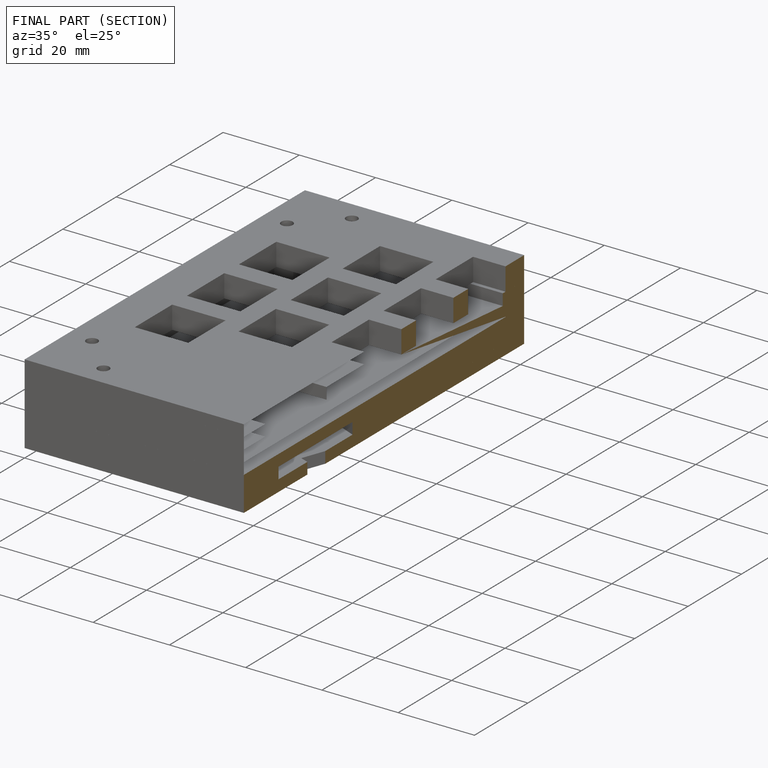
[diagram: finished part — half-section view (interior)]
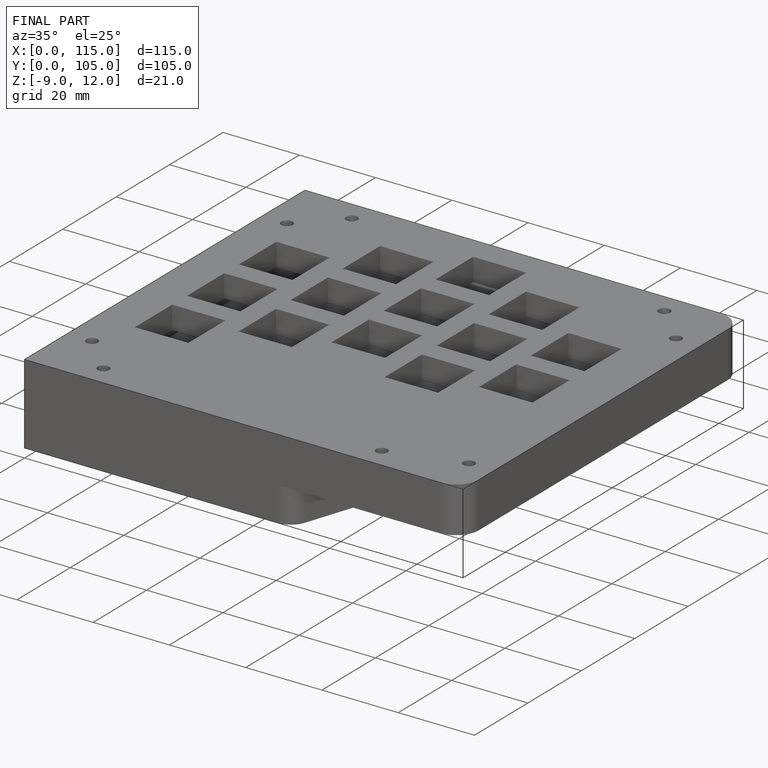
[diagram: finished part — iso view with bounding-box wireframe]
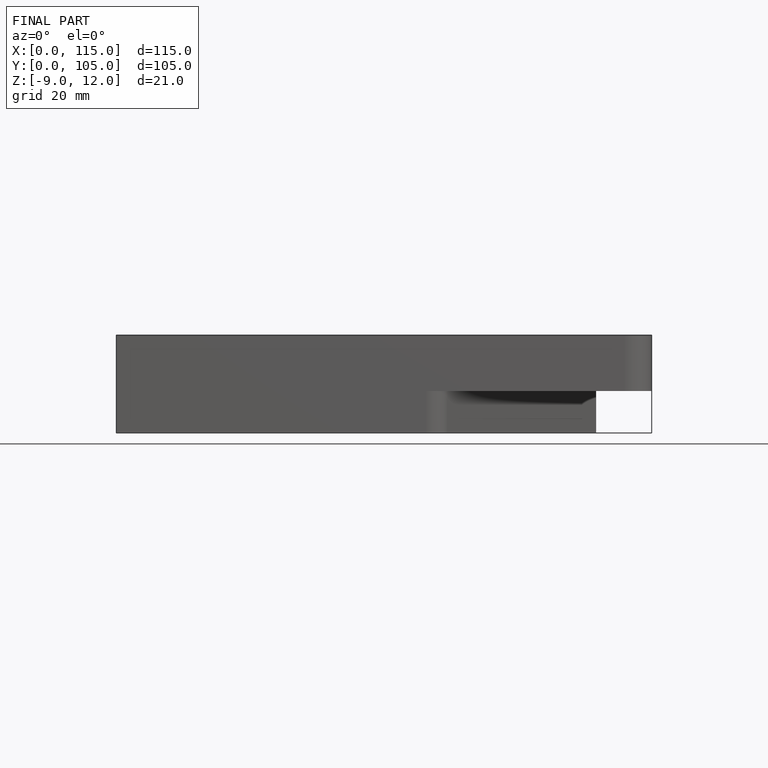
[diagram: finished part — front view with bounding-box wireframe]
